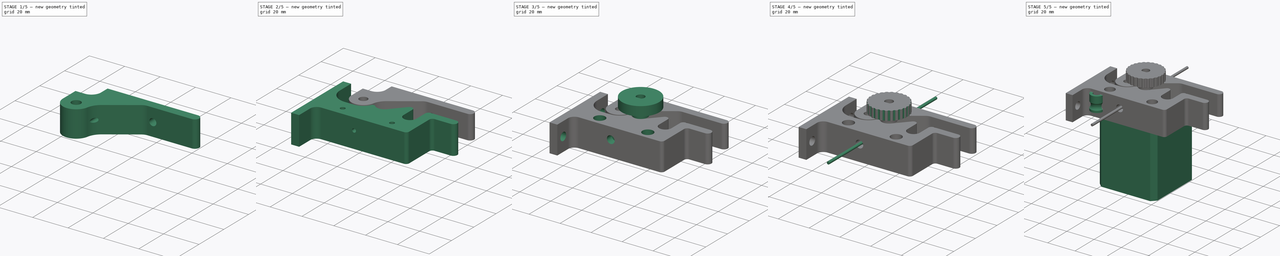
[diagram: build sequence overview — one tinted view per stage of 5, left to right]
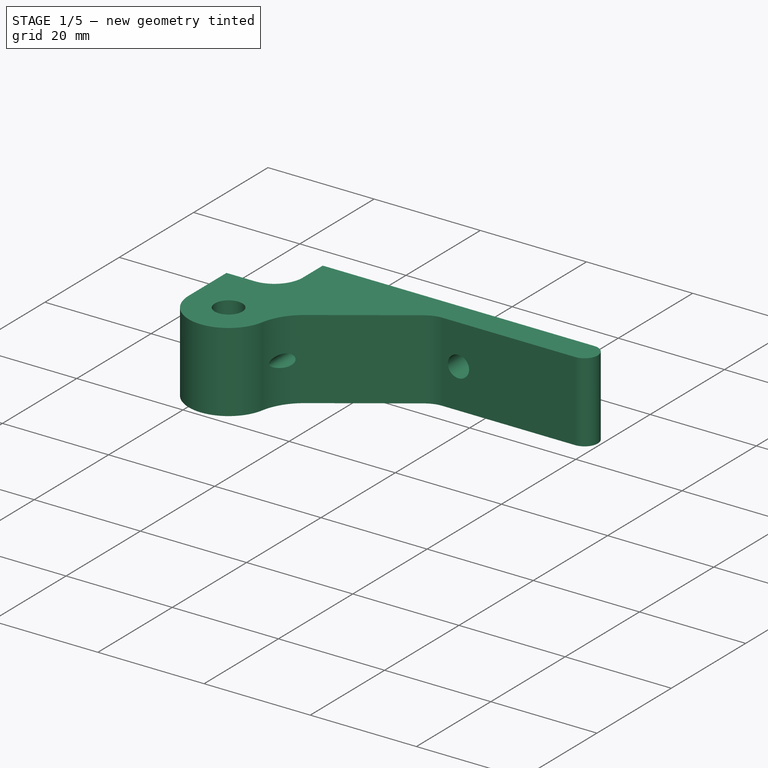
[diagram: stage 1 of 5 — iso view after this stage's code; geometry added in this stage tinted green]
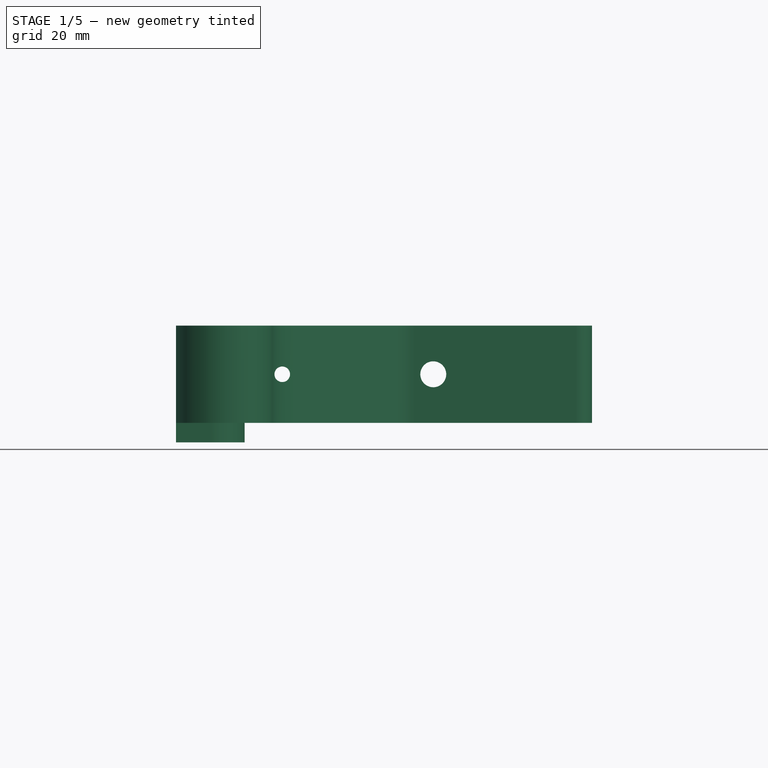
[diagram: stage 1 of 5 — front view after this stage's code; geometry added in this stage tinted green]
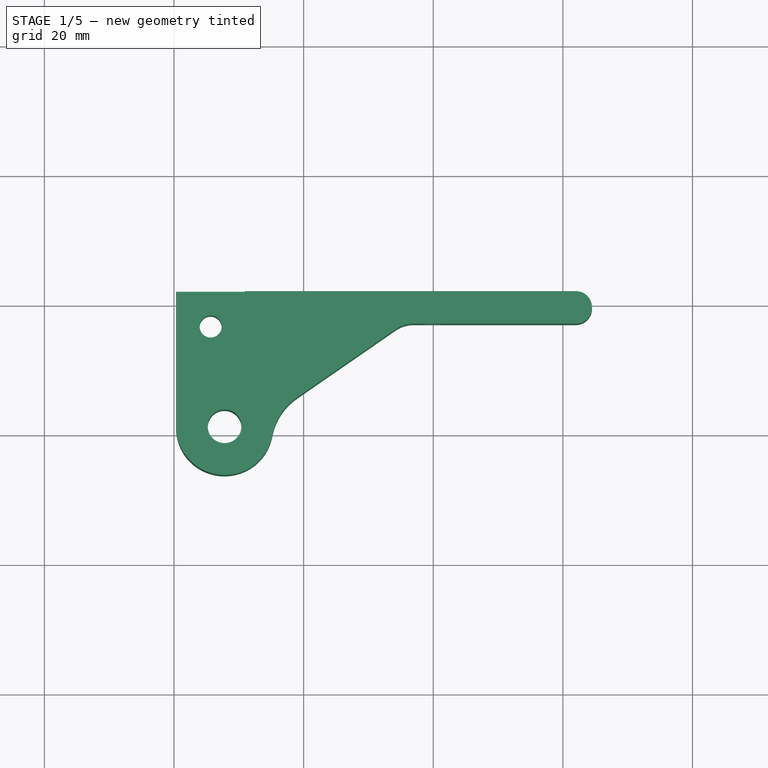
[diagram: stage 1 of 5 — top view after this stage's code; geometry added in this stage tinted green]
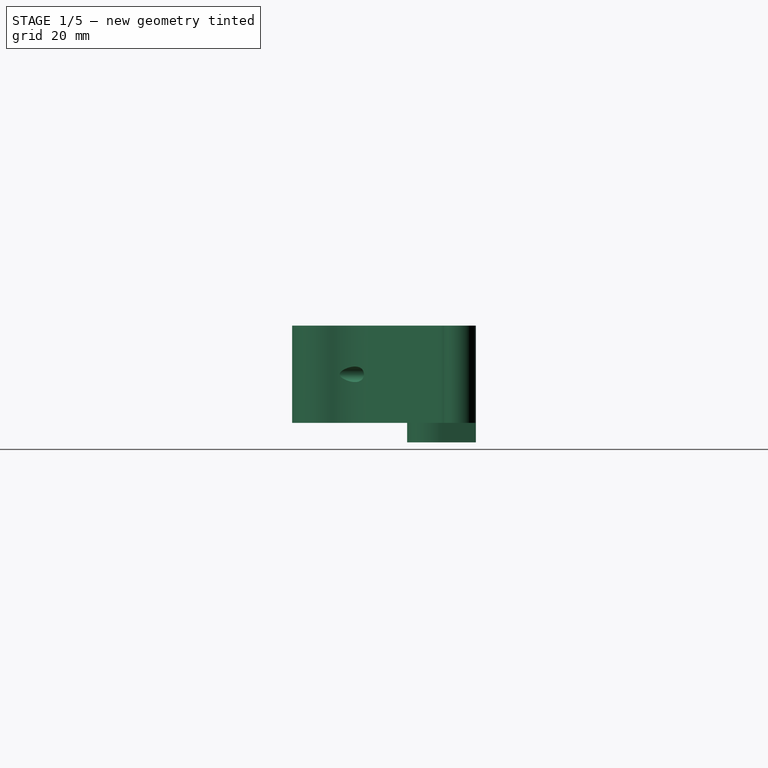
[diagram: stage 1 of 5 — right view after this stage's code; geometry added in this stage tinted green]
FCSTD DOCUMENT  (FreeCAD 0.16R4924 (Git))
Label: foxstruder
License: All rights reserved
LicenseURL: http://en.wikipedia.org/wiki/All_rights_reserved
objects: Sketcher::SketchObject×22, PartDesign::Pad×12, PartDesign::Pocket×9, App::DocumentObjectGroup×6, Part::Feature×5, PartDesign::Revolution×1, PartDesign::PolarPattern×1, PartDesign::Fillet×1, Part::Cut×1
note: 74 computed .brp shape members not serialized (recipe doc carries the construction recipe); baked Part::Feature solids carry a one-line shape summary decoded from their .brp

FEATURE [Part::Feature] Revolution001  label="MK8_copy"
  Placement = pos=(21.15,21.15,1.75) rot=(0.57735,0.57735,0.57735;2.0944rad)
  shape: bbox 9.841 x 9.841 x 11 mm, 6 faces (baked)
FEATURE [App::DocumentObjectGroup] Group001  label="gear"
  Group = -> [Revolution,Revolution001]
FEATURE [Sketcher::SketchObject] Sketch006  label="base001"
  Placement = pos=(0,0,48) rot=(0,0,1;0rad)
  sketch-geometry (45):
    g0: LineSegment [constr] StartX=5.65 StartY=5.65 StartZ=0 EndX=36.65 EndY=36.65 EndZ=0
    g1: LineSegment [constr] StartX=5.65 StartY=36.65 StartZ=0 EndX=36.65 EndY=5.65 EndZ=0
    g2: Circle [constr] CenterX=21.15 CenterY=21.15 CenterZ=0 NormalX=0 NormalY=0 NormalZ=1 Radius=11
    g3: Circle [constr] CenterX=21.15 CenterY=21.15 CenterZ=0 NormalX=0 NormalY=0 NormalZ=1 Radius=4.5
    g4: Circle CenterX=5.65 CenterY=36.65 CenterZ=0 NormalX=0 NormalY=0 NormalZ=1 Radius=1.7
    g5: Circle [constr] CenterX=36.65 CenterY=36.65 CenterZ=0 NormalX=0 NormalY=0 NormalZ=1 Radius=1.7
    g6: Circle [constr] CenterX=36.65 CenterY=5.65 CenterZ=0 NormalX=0 NormalY=0 NormalZ=1 Radius=1.7
    g7: Circle [constr] CenterX=5.65 CenterY=5.65 CenterZ=0 NormalX=0 NormalY=0 NormalZ=1 Radius=1.7
    g8: LineSegment [constr] StartX=5.65 StartY=36.65 StartZ=0 EndX=36.65 EndY=36.65 EndZ=0
    g9: LineSegment [constr] StartX=36.65 StartY=36.65 StartZ=0 EndX=36.65 EndY=5.65 EndZ=0
    g10: LineSegment [constr] StartX=36.65 StartY=5.65 StartZ=0 EndX=5.65 EndY=5.65 EndZ=0
    g11: Circle [constr] CenterX=7.8 CenterY=21.15 CenterZ=0 NormalX=0 NormalY=0 NormalZ=1 Radius=8
    g12: Circle CenterX=7.8 CenterY=21.15 CenterZ=0 NormalX=0 NormalY=0 NormalZ=1 Radius=2.6
    g13: LineSegment [constr] StartX=21.15 StartY=21.15 StartZ=0 EndX=15.8 EndY=21.15 EndZ=0
    g14: ArcOfCircle CenterX=7.8 CenterY=21.15 CenterZ=0 NormalX=0 NormalY=0 NormalZ=1 Radius=7.5 StartAngle=3.14159 EndAngle=6.09304
    g15: ArcOfCircle CenterX=24.332 CenterY=17.968 CenterZ=0 NormalX=0 NormalY=0 NormalZ=1 Radius=9.33542 StartAngle=2.17584 EndAngle=2.95144
    g16: LineSegment StartX=0.3 StartY=21.15 StartZ=0 EndX=0.3 EndY=42 EndZ=0
    g17: LineSegment StartX=34.156 StartY=36.1124 StartZ=0 EndX=19.022 EndY=25.6462 EndZ=0
    g18: ArcOfCircle [constr] CenterX=7.8 CenterY=21.15 CenterZ=0 NormalX=0 NormalY=0 NormalZ=1 Radius=8.5 StartAngle=4.71239 EndAngle=5.9112
    g19: LineSegment [constr] StartX=15.7187 StartY=18.0606 StartZ=0 EndX=17.2187 EndY=18.0606 EndZ=0
    g20: ArcOfCircle [constr] CenterX=21.15 CenterY=21.15 CenterZ=0 NormalX=0 NormalY=0 NormalZ=1 Radius=5 StartAngle=3.80765 EndAngle=5.55248
    g21: LineSegment [constr] StartX=24.8735 StartY=17.813 StartZ=0 EndX=32.5106 EndY=26.3348 EndZ=0
    g22: LineSegment [constr] StartX=36 StartY=25 StartZ=0 EndX=36 EndY=17 EndZ=0
    g23: ArcOfCircle [constr] CenterX=40 CenterY=17 CenterZ=0 NormalX=0 NormalY=0 NormalZ=1 Radius=4 StartAngle=3.14159 EndAngle=6.28319
    g24: LineSegment [constr] StartX=44 StartY=17 StartZ=0 EndX=44 EndY=25 EndZ=0
    g25: ArcOfCircle [constr] CenterX=34 CenterY=25 CenterZ=0 NormalX=0 NormalY=0 NormalZ=1 Radius=2 StartAngle=0 EndAngle=2.41089
    g26: ArcOfCircle [constr] CenterX=46 CenterY=25 CenterZ=0 NormalX=0 NormalY=0 NormalZ=1 Radius=2 StartAngle=1.5708 EndAngle=3.14159
    g27: LineSegment [constr] StartX=36 StartY=25 StartZ=0 EndX=44 EndY=25 EndZ=0
    g28: LineSegment [constr] StartX=40 StartY=13 StartZ=0 EndX=40 EndY=37 EndZ=0
    g29: LineSegment [constr] StartX=7.8 StartY=12.65 StartZ=0 EndX=2 EndY=12.65 EndZ=0
    g30: LineSegment [constr] StartX=0 StartY=10.65 StartZ=0 EndX=0 EndY=2 EndZ=0
    g31: LineSegment [constr] StartX=2 StartY=0 StartZ=0 EndX=48 EndY=0 EndZ=0
    g32: ArcOfCircle [constr] CenterX=2 CenterY=10.65 CenterZ=0 NormalX=0 NormalY=0 NormalZ=1 Radius=2 StartAngle=1.5708 EndAngle=3.14159
    g33: ArcOfCircle [constr] CenterX=2 CenterY=2 CenterZ=0 NormalX=0 NormalY=0 NormalZ=1 Radius=2 StartAngle=3.14159 EndAngle=4.71239
    g34: ArcOfCircle [constr] CenterX=48 CenterY=2 CenterZ=0 NormalX=0 NormalY=0 NormalZ=1 Radius=2 StartAngle=4.71239 EndAngle=6.28319
    g35: LineSegment StartX=37 StartY=37 StartZ=0 EndX=62 EndY=37 EndZ=0
    g36: ArcOfCircle CenterX=37 CenterY=32 CenterZ=0 NormalX=0 NormalY=0 NormalZ=1 Radius=5 StartAngle=1.5708 EndAngle=2.17584
    g37: LineSegment StartX=0.3 StartY=42 StartZ=0 EndX=62 EndY=42 EndZ=0
    g38: ArcOfCircle CenterX=62 CenterY=39.5 CenterZ=0 NormalX=0 NormalY=0 NormalZ=1 Radius=2.5 StartAngle=4.71239 EndAngle=7.85398
    g39: LineSegment [constr] StartX=46 StartY=27 StartZ=0 EndX=62 EndY=27 EndZ=0
    g40: LineSegment [constr] StartX=62 StartY=39.5 StartZ=0 EndX=62 EndY=24.5 EndZ=0
    g41: ArcOfCircle [constr] CenterX=62 CenterY=24.5 CenterZ=0 NormalX=0 NormalY=0 NormalZ=1 Radius=2.5 StartAngle=4.71239 EndAngle=7.85398
    g42: LineSegment [constr] StartX=62 StartY=22 StartZ=0 EndX=52 EndY=22 EndZ=0
    g43: LineSegment [constr] StartX=50 StartY=20 StartZ=0 EndX=50 EndY=2 EndZ=0
    g44: ArcOfCircle [constr] CenterX=52 CenterY=20 CenterZ=0 NormalX=0 NormalY=0 NormalZ=1 Radius=2 StartAngle=1.5708 EndAngle=3.14159
  constraints (125):
    c: Angle(g0) = 0.785398
    c: Perpendicular(g1,g0)
    c: PointOnObject(g2,g1)
    c: PointOnObject(g2,g0)
    c: Radius(g2) = 11
    c: Coincident(g3,g2)
    c: Radius(g3) = 4.5
    c: Radius(g4) = 1.7
    c: Equal(g7,g6)
    c: Equal(g6,g5)
    c: Equal(g5,g4)
    c: Coincident(g8,g4)
    c: Coincident(g8,g5)
    c: Horizontal(g8)
    c: Coincident(g9,g5)
    c: Coincident(g9,g6)
    c: Vertical(g9)
    c: Coincident(g10,g6)
    c: Coincident(g10,g7)
    c: Horizontal(g10)
    c: Distance(g8) = 31
    c: Radius(g11) = 8
    c: Coincident(g12,g11)
    c: Radius(g12) = 2.6
    c: Coincident(g13,g2)
    c: Horizontal(g13)
    c: Distance(g13) = 5.35
    c: Coincident(g14,g11)
    c: Perpendicular(g11,g13)
    c: Radius(g14) = 7.5
    c: PointOnObject(g13,g11)
    c: Tangent(g16,g14)
    c: Vertical(g16)
    c: Coincident(g16,g14)
    c: PointOnObject(g15,g1)
    c: PointOnObject(g15,g3)
    c: Coincident(g14,g15)
    c: Coincident(g15,g17)
    c: DistanceX(g2) = 21.15
    c: DistanceY(g2) = 21.15
    c: Coincident(g1,g6)
    c: Coincident(g0,g7)
    c: Coincident(g5,g0)
    c: Coincident(g1,g4)
    c: Tangent(g17,g15)
    c: Coincident(g18,g11)
    c: Radius(g18) = 8.5
    c: Coincident(g19,g18)
    c: Horizontal(g19)
    c: Coincident(g20,g2)
    c: Coincident(g20,g19)
    c: Radius(g20) = 5
    c: Distance(g19) = 1.5
    c: Coincident(g21,g20)
    c: Tangent(g21,g20)
    c: Vertical(g22)
    c: Coincident(g23,g22)
    c: Tangent(g23,g22)
    c: Coincident(g24,g23)
    c: Vertical(g24)
    c: Tangent(g23,g24)
    c: Radius(g23) = 4
    c: Tangent(g21,g25) = 1.5708
    c: Tangent(g22,g25) = 1.5708
    c: Coincident(g26,g24)
    c: Tangent(g26,g24)
    c: Equal(g25,g26)
    c: Radius(g26) = 2
    c: Coincident(g27,g22)
    c: Coincident(g27,g24)
    c: Horizontal(g27)
    c: PointOnObject(g28,g23)
    c: Vertical(g28)
    c: Perpendicular(g23,g28)
    c: Distance(g28) = 24
    c: Tangent(g18,g29) = 1.5708
    c: Vertical(g30)
    c: Horizontal(g31)
    c: Horizontal(g29)
    c: Tangent(g29,g32) = -1.5708
    c: Tangent(g30,g32) = -1.5708
    c: Tangent(g30,g33) = -1.5708
    c: Tangent(g31,g33) = -1.5708
    c: Tangent(g31,g34) = -1.5708
    c: Equal(g26,g34)
    c: Equal(g34,g33)
    c: Equal(g33,g32)
    c: PointOnObject(g30,g-2)
    c: PointOnObject(g31,g-1)
    c: Horizontal(g35)
    c: PointOnObject(g28,g35)
    c: DistanceY(g28,g24) = 12
    c: Tangent(g17,g36) = -1.5708
    c: Tangent(g35,g36) = 1.5708
    c: Radius(g36) = 5
    c: Horizontal(g37)
    c: Coincident(g38,g37)
    c: Coincident(g38,g35)
    c: Tangent(g38,g37)
    c: Tangent(g35,g38)
    c: Coincident(g39,g26)
    c: Horizontal(g39)
    c: Coincident(g40,g38)
    c: Vertical(g40)
    c: Coincident(g41,g40)
    c: Coincident(g41,g39)
    c: Tangent(g41,g39)
    c: Equal(g38,g41)
    c: Tangent(g41,g42) = 1.5708
    c: Coincident(g43,g34)
    c: Tangent(g42,g44) = -1.5708
    c: Tangent(g43,g44) = -1.5708
    c: Equal(g44,g26)
    c: Vertical(g43)
    c: Horizontal(g42)
    c: DistanceX(g43,g23) = -6
    c: Distance(g42) = 10
    c: Radius(g38) = 2.5
    c: Tangent(g39,g26)
    c: Tangent(g14,g15)
    c: DistanceX(g28) = 40
    c: Tangent(g34,g43)
    c: DistanceX(g35,g28) = 3
    c: Coincident(g37,g16)
    c: Distance(g16) = 20.85
FEATURE [PartDesign::Pad] Pad005
  Length = 15
  Length2 = 100
  Placement = pos=(0,0,48) rot=(0,0,1;0rad)
  Sketch = -> Sketch006
  Type = 0
FEATURE [App::DocumentObjectGroup] Group003  label="base_block"
  Group = -> [Sketch004,Pad008,Pocket,Pocket007,Pocket008,Pocket009,Pocket010]
FEATURE [Part::Feature] Pocket011001  label="extruder_base_copy"
  shape: bbox 77.5 x 46.65 x 18 mm, 40 faces (baked)
FEATURE [Part::Feature] Fillet001001  label="fingerwheel_copy"
  shape: bbox 26.4 x 26.4 x 13.7 mm, 59 faces (baked)
FEATURE [Sketcher::SketchObject] Sketch024
  ExternalGeometry = -> [Pad005]
  Placement = pos=(0,0,48) rot=(1,0,0;3.14159rad)
  Support = -> Pad005 [Face11]
  sketch-geometry (6):
    g0: LineSegment StartX=0.3 StartY=-42 StartZ=0 EndX=10.9 EndY=-42 EndZ=0
    g1: LineSegment StartX=10.9 StartY=-42 StartZ=0 EndX=10.9 EndY=-36.6592 EndZ=0
    g2: LineSegment StartX=0.3 StartY=-31.4 StartZ=0 EndX=0.3 EndY=-42 EndZ=0
    g3: ArcOfCircle CenterX=5.65 CenterY=-36.65 CenterZ=0 NormalX=0 NormalY=0 NormalZ=1 Radius=5.25 StartAngle=6.28144 EndAngle=7.85398
    g4: Circle CenterX=5.65 CenterY=-36.65 CenterZ=0 NormalX=0 NormalY=0 NormalZ=1 Radius=1.7
    g5: LineSegment StartX=5.65002 StartY=-31.4 StartZ=0 EndX=0.3 EndY=-31.4 EndZ=0
  constraints (15):
    c: Coincident(g0,g1)
    c: Coincident(g2,g0)
    c: Horizontal(g0)
    c: Vertical(g1)
    c: Vertical(g2)
    c: Coincident(g0,g-4)
    c: Coincident(g3,g-3)
    c: Coincident(g3,g1)
    c: Coincident(g4,g3)
    c: Equal(g4,g-3)
    c: Coincident(g5,g3)
    c: Horizontal(g5)
    c: Coincident(g2,g5)
    c: Tangent(g3,g5)
    c: Radius(g3) = 5.25
FEATURE [PartDesign::Pad] Pad013
  Length = 3
  Length2 = 100
  Placement = pos=(0,0,48) rot=(0,0,1;0rad)
  Sketch = -> Sketch024
  Type = 0
FEATURE [Sketcher::SketchObject] Sketch014
  Placement = pos=(0,42,48) rot=(0,0.707107,0.707107;3.14159rad)
  Support = -> Pad013 [Face15]
  sketch-geometry (3):
    g0: Circle CenterX=-40 CenterY=7.5 CenterZ=0 NormalX=0 NormalY=0 NormalZ=1 Radius=2
    g1: Circle CenterX=-16.7 CenterY=7.5 CenterZ=0 NormalX=0 NormalY=0 NormalZ=1 Radius=1.2
    g2: LineSegment [constr] StartX=-40 StartY=7.5 StartZ=0 EndX=-16.7 EndY=7.5 EndZ=0
  constraints (8):
    c: Radius(g0) = 2
    c: DistanceX(g0) = -40
    c: DistanceY(g0) = 7.5
    c: Radius(g1) = 1.2
    c: Coincident(g2,g0)
    c: Coincident(g2,g1)
    c: Horizontal(g2)
    c: DistanceX(g1) = -16.7
FEATURE [PartDesign::Pocket] Pocket011002
  Length = 5
  Placement = pos=(0,0,48) rot=(0,0,1;0rad)
  Sketch = -> Sketch014
  Type = 1
FEATURE [Sketcher::SketchObject] Sketch017
  Placement = pos=(0,42,48) rot=(0,0.707107,0.707107;3.14159rad)
  Support = -> Pocket011002 [Face6]
  sketch-geometry (3):
    g0: Circle [constr] CenterX=-40 CenterY=7.5 CenterZ=0 NormalX=0 NormalY=0 NormalZ=1 Radius=2
    g1: Circle CenterX=-16.7 CenterY=7.5 CenterZ=0 NormalX=0 NormalY=0 NormalZ=1 Radius=2.6
    g2: LineSegment [constr] StartX=-40 StartY=7.5 StartZ=0 EndX=-16.7 EndY=7.5 EndZ=0
  constraints (8):
    c: Radius(g0) = 2
    c: DistanceX(g0) = -40
    c: DistanceY(g0) = 7.5
    c: Radius(g1) = 2.6
    c: Coincident(g2,g0)
    c: Coincident(g2,g1)
    c: Horizontal(g2)
    c: DistanceX(g1) = -16.7
FEATURE [PartDesign::Pocket] Pocket011003
  Length = 4.5
  Placement = pos=(0,0,48) rot=(0,0,1;0rad)
  Sketch = -> Sketch017
  Type = 0
FEATURE [Sketcher::SketchObject] Sketch025
  Placement = pos=(0,0,63) rot=(0,0,1;0rad)
  Support = -> Pocket011003 [Face5]
  sketch-geometry (5):
    g0: LineSegment StartX=-0.494617 StartY=43 StartZ=0 EndX=10.9329 EndY=43 EndZ=0
    g1: LineSegment StartX=-0.494617 StartY=31.3034 StartZ=0 EndX=-0.494617 EndY=43 EndZ=0
    g2: ArcOfCircle CenterX=5.58291 CenterY=36.6534 CenterZ=0 NormalX=0 NormalY=0 NormalZ=1 Radius=5.35 StartAngle=4.71239 EndAngle=6.28319
    g3: LineSegment StartX=-0.494617 StartY=31.3034 StartZ=0 EndX=5.58291 EndY=31.3034 EndZ=0
    g4: LineSegment StartX=10.9329 StartY=36.6534 StartZ=0 EndX=10.9329 EndY=43 EndZ=0
  constraints (12):
    c: Coincident(g1,g0)
    c: Horizontal(g0)
    c: Vertical(g1)
    c: Coincident(g3,g1)
    c: Coincident(g3,g2)
    c: Horizontal(g3)
    c: Coincident(g4,g2)
    c: Vertical(g4)
    c: Coincident(g0,g4)
    c: Tangent(g4,g2)
    c: Tangent(g3,g2)
    c: Radius(g2) = 5.35
FEATURE [PartDesign::Pocket] Pocket011004
  Length = 6
  Placement = pos=(0,0,48) rot=(0,0,1;0rad)
  Sketch = -> Sketch025
  Type = 0
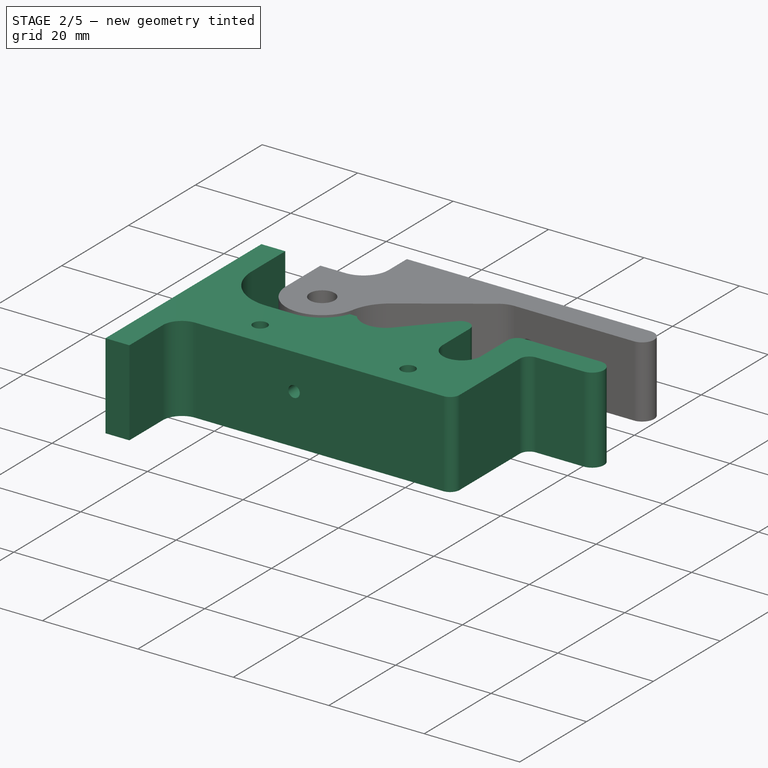
[diagram: stage 2 of 5 — iso view after this stage's code; geometry added in this stage tinted green]
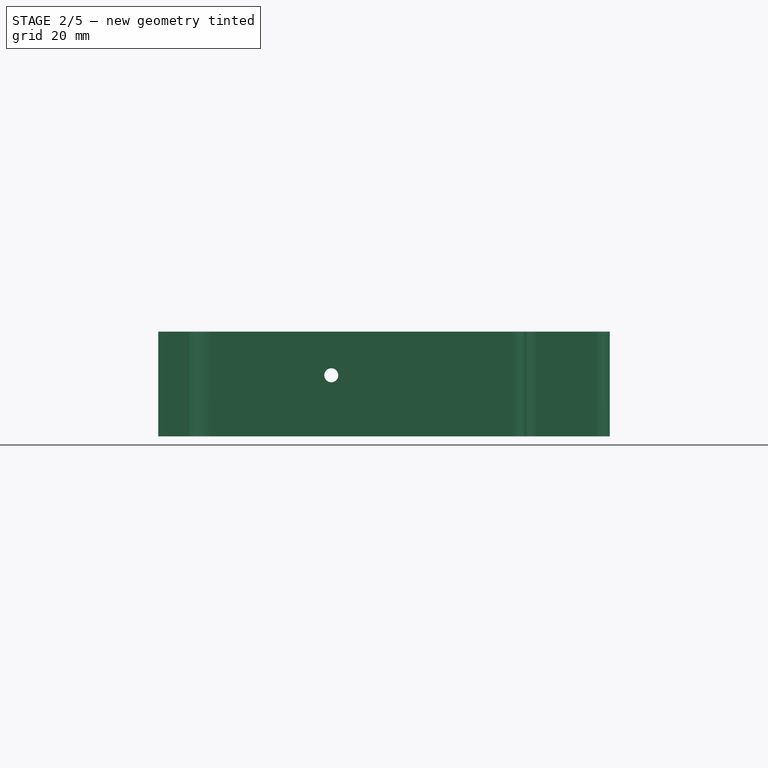
[diagram: stage 2 of 5 — front view after this stage's code; geometry added in this stage tinted green]
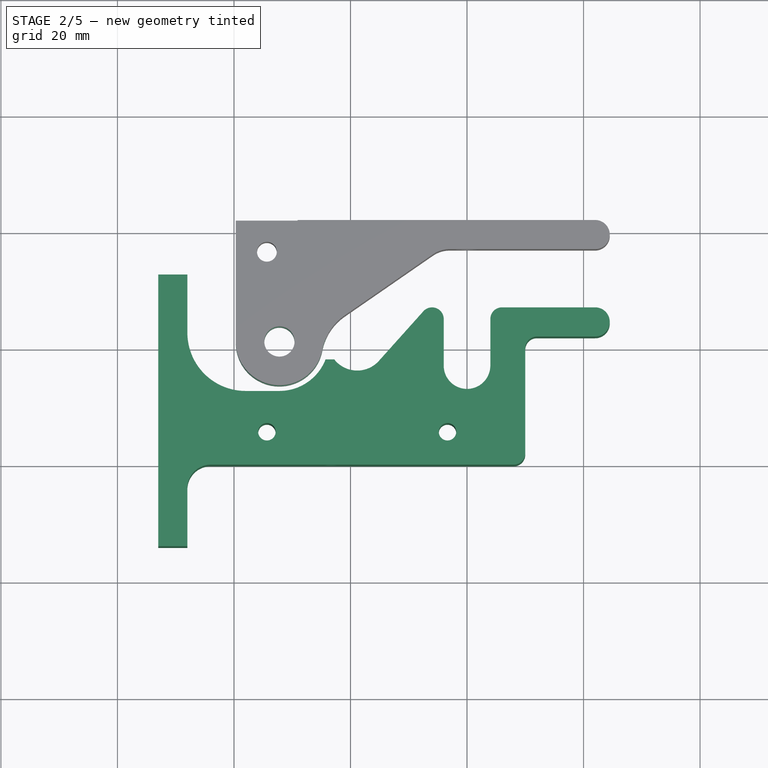
[diagram: stage 2 of 5 — top view after this stage's code; geometry added in this stage tinted green]
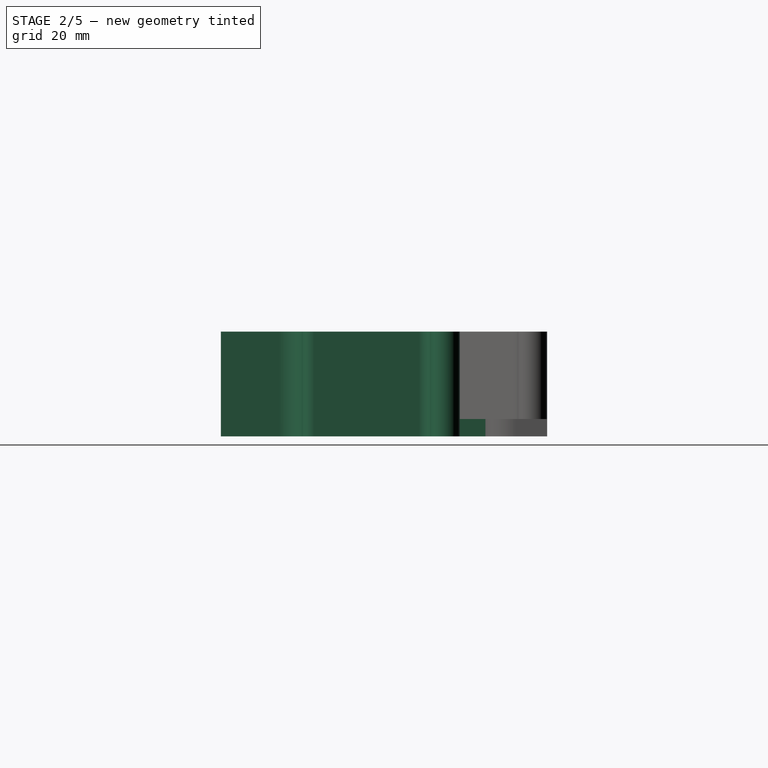
[diagram: stage 2 of 5 — right view after this stage's code; geometry added in this stage tinted green]
FEATURE [Sketcher::SketchObject] Sketch011  label="base004"
  Placement = pos=(0,0,45) rot=(0,0,1;0rad)
  sketch-geometry (51):
    g0: LineSegment [constr] StartX=5.65 StartY=5.65 StartZ=0 EndX=36.65 EndY=36.65 EndZ=0
    g1: LineSegment [constr] StartX=5.65 StartY=36.65 StartZ=0 EndX=36.65 EndY=5.65 EndZ=0
    g2: Circle [constr] CenterX=21.15 CenterY=21.15 CenterZ=0 NormalX=0 NormalY=0 NormalZ=1 Radius=11
    g3: Circle [constr] CenterX=21.15 CenterY=21.15 CenterZ=0 NormalX=0 NormalY=0 NormalZ=1 Radius=4.5
    g4: Circle [constr] CenterX=5.65 CenterY=36.65 CenterZ=0 NormalX=0 NormalY=0 NormalZ=1 Radius=1.5
    g5: Circle [constr] CenterX=36.65 CenterY=36.65 CenterZ=0 NormalX=0 NormalY=0 NormalZ=1 Radius=1.5
    g6: Circle CenterX=36.65 CenterY=5.65 CenterZ=0 NormalX=0 NormalY=0 NormalZ=1 Radius=1.5
    g7: Circle CenterX=5.65 CenterY=5.65 CenterZ=0 NormalX=0 NormalY=0 NormalZ=1 Radius=1.5
    g8: LineSegment [constr] StartX=5.65 StartY=36.65 StartZ=0 EndX=36.65 EndY=36.65 EndZ=0
    g9: LineSegment [constr] StartX=36.65 StartY=36.65 StartZ=0 EndX=36.65 EndY=5.65 EndZ=0
    g10: LineSegment [constr] StartX=36.65 StartY=5.65 StartZ=0 EndX=5.65 EndY=5.65 EndZ=0
    g11: Circle [constr] CenterX=7.8 CenterY=21.15 CenterZ=0 NormalX=0 NormalY=0 NormalZ=1 Radius=8
    g12: Circle [constr] CenterX=7.8 CenterY=21.15 CenterZ=0 NormalX=0 NormalY=0 NormalZ=1 Radius=2.5
    g13: LineSegment [constr] StartX=21.15 StartY=21.15 StartZ=0 EndX=15.8 EndY=21.15 EndZ=0
    g14: ArcOfCircle [constr] CenterX=7.8 CenterY=21.15 CenterZ=0 NormalX=0 NormalY=0 NormalZ=1 Radius=7.5 StartAngle=3.14159 EndAngle=6.09304
    g15: ArcOfCircle [constr] CenterX=24.332 CenterY=17.968 CenterZ=0 NormalX=0 NormalY=0 NormalZ=1 Radius=9.33542 StartAngle=2.17584 EndAngle=2.95144
    g16: LineSegment [constr] StartX=0.3 StartY=21.15 StartZ=0 EndX=0.3 EndY=36.65 EndZ=0
    g17: LineSegment [constr] StartX=34.156 StartY=36.1124 StartZ=0 EndX=19.022 EndY=25.6462 EndZ=0
    g18: ArcOfCircle [constr] CenterX=5.65 CenterY=36.65 CenterZ=0 NormalX=0 NormalY=0 NormalZ=1 Radius=5.35 StartAngle=1.5708 EndAngle=3.14159
    g19: ArcOfCircle CenterX=7.8 CenterY=21.15 CenterZ=0 NormalX=0 NormalY=0 NormalZ=1 Radius=8.5 StartAngle=4.71239 EndAngle=5.9112
    g20: LineSegment StartX=15.7187 StartY=18.0606 StartZ=0 EndX=17.2187 EndY=18.0606 EndZ=0
    g21: ArcOfCircle CenterX=21.15 CenterY=21.15 CenterZ=0 NormalX=0 NormalY=0 NormalZ=1 Radius=5 StartAngle=3.80765 EndAngle=5.55248
    g22: LineSegment StartX=24.8735 StartY=17.813 StartZ=0 EndX=32.5106 EndY=26.3348 EndZ=0
    g23: LineSegment StartX=36 StartY=25 StartZ=0 EndX=36 EndY=17 EndZ=0
    g24: ArcOfCircle CenterX=40 CenterY=17 CenterZ=0 NormalX=0 NormalY=0 NormalZ=1 Radius=4 StartAngle=3.14159 EndAngle=6.28319
    g25: LineSegment StartX=44 StartY=17 StartZ=0 EndX=44 EndY=25 EndZ=0
    g26: ArcOfCircle CenterX=34 CenterY=25 CenterZ=0 NormalX=0 NormalY=0 NormalZ=1 Radius=2 StartAngle=0 EndAngle=2.41089
    g27: ArcOfCircle CenterX=46 CenterY=25 CenterZ=0 NormalX=0 NormalY=0 NormalZ=1 Radius=2 StartAngle=1.5708 EndAngle=3.14159
    g28: LineSegment [constr] StartX=36 StartY=25 StartZ=0 EndX=44 EndY=25 EndZ=0
    g29: LineSegment [constr] StartX=40 StartY=13 StartZ=0 EndX=40 EndY=37 EndZ=0
    g30: LineSegment StartX=7.8 StartY=12.65 StartZ=0 EndX=2 EndY=12.65 EndZ=0
    g31: LineSegment StartX=-4 StartY=0 StartZ=0 EndX=48 EndY=0 EndZ=0
    g32: ArcOfCircle CenterX=48 CenterY=2 CenterZ=0 NormalX=0 NormalY=0 NormalZ=1 Radius=2 StartAngle=4.71239 EndAngle=6.28319
    g33: LineSegment [constr] StartX=37 StartY=37 StartZ=0 EndX=62 EndY=37 EndZ=0
    g34: ArcOfCircle [constr] CenterX=37 CenterY=32 CenterZ=0 NormalX=0 NormalY=0 NormalZ=1 Radius=5 StartAngle=1.5708 EndAngle=2.17584
    g35: LineSegment [constr] StartX=5.65 StartY=42 StartZ=0 EndX=62 EndY=42 EndZ=0
    g36: ArcOfCircle [constr] CenterX=62 CenterY=39.5 CenterZ=0 NormalX=0 NormalY=0 NormalZ=1 Radius=2.5 StartAngle=4.71239 EndAngle=7.85398
    g37: LineSegment StartX=46 StartY=27 StartZ=0 EndX=62 EndY=27 EndZ=0
    g38: LineSegment [constr] StartX=62 StartY=39.5 StartZ=0 EndX=62 EndY=24.5 EndZ=0
    g39: ArcOfCircle CenterX=62 CenterY=24.5 CenterZ=0 NormalX=0 NormalY=0 NormalZ=1 Radius=2.5 StartAngle=4.71239 EndAngle=7.85398
    g40: LineSegment StartX=62 StartY=22 StartZ=0 EndX=52 EndY=22 EndZ=0
    g41: LineSegment StartX=50 StartY=20 StartZ=0 EndX=50 EndY=2 EndZ=0
    g42: ArcOfCircle CenterX=52 CenterY=20 CenterZ=0 NormalX=0 NormalY=0 NormalZ=1 Radius=2 StartAngle=1.5708 EndAngle=3.14159
    g43: ArcOfCircle CenterX=2 CenterY=22.65 CenterZ=0 NormalX=0 NormalY=0 NormalZ=1 Radius=10 StartAngle=3.14159 EndAngle=4.71239
    g44: LineSegment StartX=-8 StartY=22.65 StartZ=0 EndX=-8 EndY=32.65 EndZ=0
    g45: ArcOfCircle CenterX=-4 CenterY=-4 CenterZ=0 NormalX=0 NormalY=0 NormalZ=1 Radius=4 StartAngle=1.5708 EndAngle=3.14159
    g46: LineSegment StartX=-8 StartY=-3.99997 StartZ=0 EndX=-8 EndY=-14 EndZ=0
    g47: LineSegment [constr] StartX=-8 StartY=22.65 StartZ=0 EndX=-8 EndY=-3.99997 EndZ=0
    g48: LineSegment StartX=-8 StartY=32.65 StartZ=0 EndX=-13 EndY=32.65 EndZ=0
    g49: LineSegment StartX=-13 StartY=32.65 StartZ=0 EndX=-13 EndY=-14 EndZ=0
    g50: LineSegment StartX=-13 StartY=-14 StartZ=0 EndX=-8 EndY=-14 EndZ=0
  constraints (145):
    c: Angle(g0) = 0.785398
    c: Perpendicular(g1,g0)
    c: PointOnObject(g2,g1)
    c: PointOnObject(g2,g0)
    c: Radius(g2) = 11
    c: Coincident(g3,g2)
    c: Radius(g3) = 4.5
    c: Radius(g4) = 1.5
    c: Equal(g7,g6)
    c: Equal(g6,g5)
    c: Equal(g5,g4)
    c: Coincident(g8,g4)
    c: Coincident(g8,g5)
    c: Horizontal(g8)
    c: Coincident(g9,g5)
    c: Coincident(g9,g6)
    c: Vertical(g9)
    c: Coincident(g10,g6)
    c: Coincident(g10,g7)
    c: Horizontal(g10)
    c: Distance(g8) = 31
    c: Radius(g11) = 8
    c: Coincident(g12,g11)
    c: Radius(g12) = 2.5
    c: Coincident(g13,g2)
    c: Horizontal(g13)
    c: Distance(g13) = 5.35
    c: Coincident(g14,g11)
    c: Perpendicular(g11,g13)
    c: Radius(g14) = 7.5
    c: PointOnObject(g13,g11)
    c: Tangent(g16,g18) = 1.5708
    c: Coincident(g18,g4)
    c: Tangent(g16,g14)
    c: Vertical(g16)
    c: Coincident(g16,g14)
    c: PointOnObject(g15,g1)
    c: PointOnObject(g15,g3)
    c: Coincident(g14,g15)
    c: Coincident(g15,g17)
    c: DistanceX(g2) = 21.15
    c: DistanceY(g2) = 21.15
    c: Coincident(g1,g6)
    c: Coincident(g0,g7)
    c: Coincident(g5,g0)
    c: Coincident(g1,g4)
    c: Tangent(g17,g15)
    c: Coincident(g19,g11)
    c: Radius(g19) = 8.5
    c: Coincident(g20,g19)
    c: Horizontal(g20)
    c: Coincident(g21,g2)
    c: Coincident(g21,g20)
    c: Radius(g21) = 5
    c: Distance(g20) = 1.5
    c: Coincident(g22,g21)
    c: Tangent(g22,g21)
    c: Vertical(g23)
    c: Coincident(g24,g23)
    c: Tangent(g24,g23)
    c: Coincident(g25,g24)
    c: Vertical(g25)
    c: Tangent(g24,g25)
    c: Radius(g24) = 4
    c: Tangent(g22,g26) = 1.5708
    c: Tangent(g23,g26) = 1.5708
    c: Coincident(g27,g25)
    c: Tangent(g27,g25)
    c: Equal(g26,g27)
    c: Radius(g27) = 2
    c: Coincident(g28,g23)
    c: Coincident(g28,g25)
    c: Horizontal(g28)
    c: PointOnObject(g29,g24)
    c: Vertical(g29)
    c: Perpendicular(g24,g29)
    c: Distance(g29) = 24
    c: Tangent(g19,g30) = 1.5708
    c: Horizontal(g31)
    c: Horizontal(g30)
    c: Tangent(g31,g32) = -1.5708
    c: Equal(g27,g32)
    c: PointOnObject(g31,g-1)
    c: Horizontal(g33)
    c: PointOnObject(g29,g33)
    c: DistanceY(g29,g25) = 12
    c: Tangent(g17,g34) = -1.5708
    c: Tangent(g33,g34) = 1.5708
    c: Radius(g34) = 5
    c: Coincident(g35,g18)
    c: Horizontal(g35)
    c: Coincident(g36,g35)
    c: Coincident(g36,g33)
    c: Tangent(g36,g35)
    c: Tangent(g33,g36)
    c: Coincident(g37,g27)
    c: Horizontal(g37)
    c: Coincident(g38,g36)
    c: Vertical(g38)
    c: Coincident(g39,g38)
    c: Coincident(g39,g37)
    c: Tangent(g39,g37)
    c: Equal(g36,g39)
    c: Tangent(g39,g40) = 1.5708
    c: Coincident(g41,g32)
    c: Tangent(g40,g42) = -1.5708
    c: Tangent(g41,g42) = -1.5708
    c: Equal(g42,g27)
    c: Vertical(g41)
    c: Horizontal(g40)
    c: DistanceX(g41,g24) = -6
    c: Distance(g40) = 10
    c: Radius(g36) = 2.5
    c: Tangent(g37,g27)
    c: Tangent(g14,g15)
    c: DistanceX(g29) = 40
    c: Tangent(g32,g41)
    c: DistanceX(g33,g29) = 3
    c: Tangent(g18,g35)
    c: Coincident(g43,g30)
    c: Tangent(g43,g30)
    c: Coincident(g44,g43)
    c: Vertical(g44)
    c: Coincident(g45,g31)
    c: Tangent(g31,g45)
    c: Coincident(g46,g45)
    c: Vertical(g46)
    c: Coincident(g47,g43)
    c: Coincident(g47,g45)
    c: Vertical(g47)
    c: DistanceX(g45) = -8
    c: Coincident(g44,g48)
    c: Horizontal(g48)
    c: Coincident(g48,g49)
    c: Vertical(g49)
    c: Coincident(g49,g50)
    c: Coincident(g50,g46)
    c: Horizontal(g50)
    c: Distance(g48) = 5
    c: Tangent(g43,g44)
    c: Tangent(g45,g46)
    c: Distance(g46) = 10
    c: Radius(g45) = 4
    c: Radius(g43) = 10
    c: Distance(g44) = 10
FEATURE [PartDesign::Pad] Pad008
  Length = 18
  Length2 = 100
  Placement = pos=(0,0,45) rot=(0,0,1;0rad)
  Sketch = -> Sketch011
  Type = 0
FEATURE [App::DocumentObjectGroup] Group005  label="fingerwheel"
  Group = -> [Pad010,Pad011,Pocket006,PolarPattern,Fillet]
FEATURE [PartDesign::Pad] Pad012  label="roller_copy"
  Length = 5.5
  Length2 = 100
  Placement = pos=(7.8,21.15,52.75) rot=(0,0,1;0rad)
  Sketch = -> Sketch009
  Type = 0
FEATURE [PartDesign::Pocket] Pocket
  Length = 3
  Placement = pos=(0,0,45) rot=(0,0,1;0rad)
  Sketch = -> Sketch012
  Type = 0
FEATURE [Sketcher::SketchObject] Sketch015
  Placement = pos=(0,0,45) rot=(1,0,0;1.5708rad)
  Support = -> Pocket [Face14]
  sketch-geometry (1):
    g0: Circle CenterX=16.7 CenterY=10.5 CenterZ=0 NormalX=0 NormalY=0 NormalZ=1 Radius=1.2
  constraints (3):
    c: DistanceX(g0) = 16.7
    c: DistanceY(g0) = 10.5
    c: Radius(g0) = 1.2
FEATURE [PartDesign::Pocket] Pocket007
  Length = 5
  Placement = pos=(0,0,45) rot=(0,0,1;0rad)
  Sketch = -> Sketch015
  Type = 1
FEATURE [Part::Cut] Cut  label="tensioner001"
  Base = -> Pocket011004
  Tool = -> Pad012
FEATURE [App::DocumentObjectGroup] Group004  label="tensioner"
  Group = -> [Pad005,Pad013,Pocket011002,Pocket011003,Cut]
FEATURE [Part::Feature] Cut001  label="tensioner_copy"
  Placement = pos=(45,10,42) rot=(-1,0,0;1.5708rad)
  shape: bbox 64.2 x 18 x 28.35 mm, 29 faces (baked)
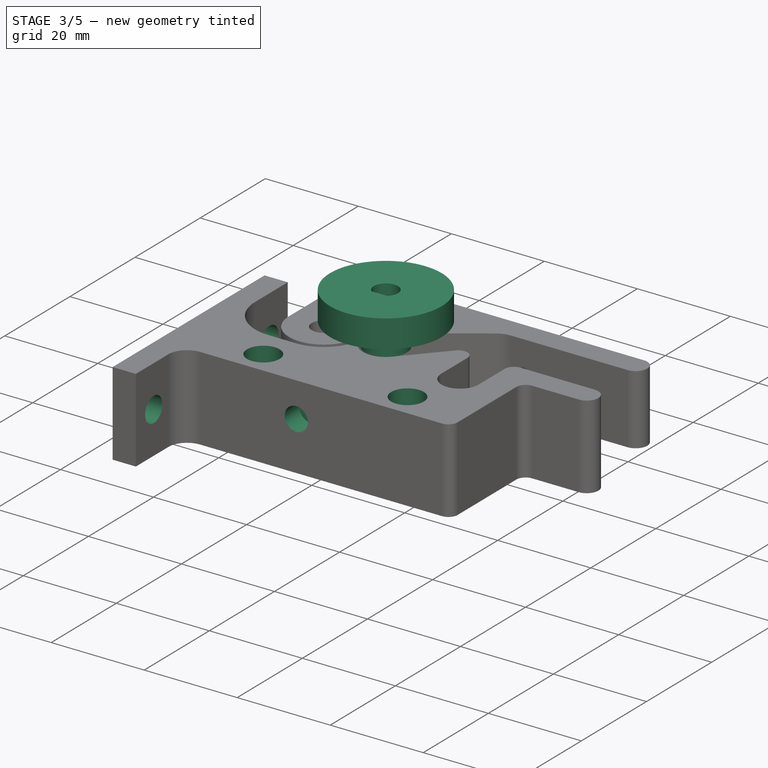
[diagram: stage 3 of 5 — iso view after this stage's code; geometry added in this stage tinted green]
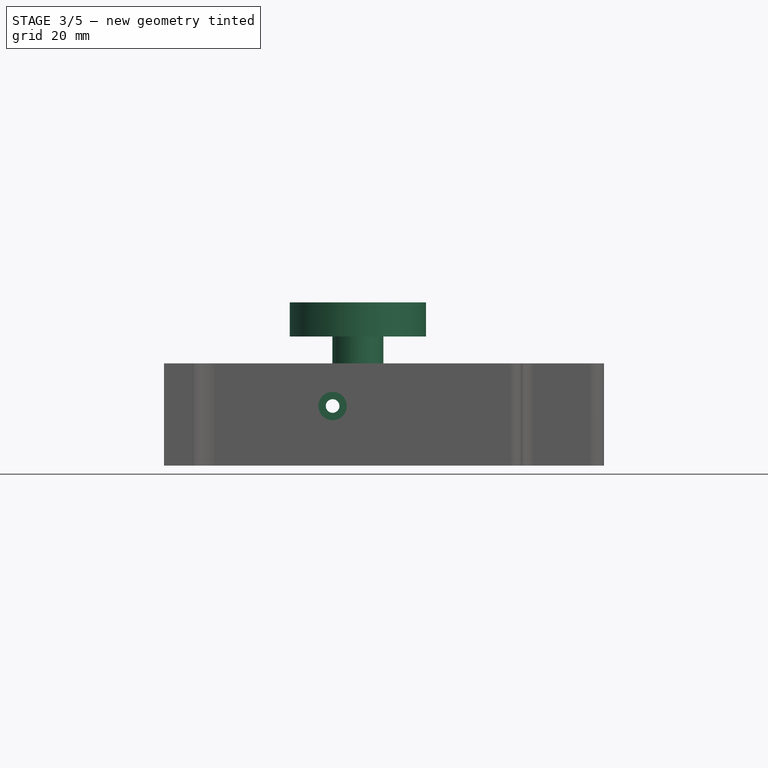
[diagram: stage 3 of 5 — front view after this stage's code; geometry added in this stage tinted green]
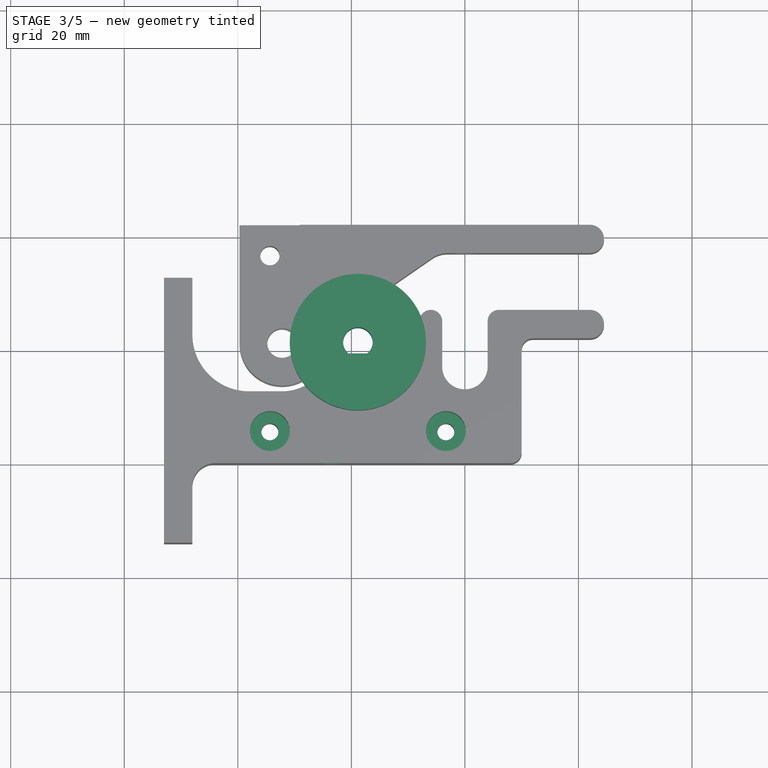
[diagram: stage 3 of 5 — top view after this stage's code; geometry added in this stage tinted green]
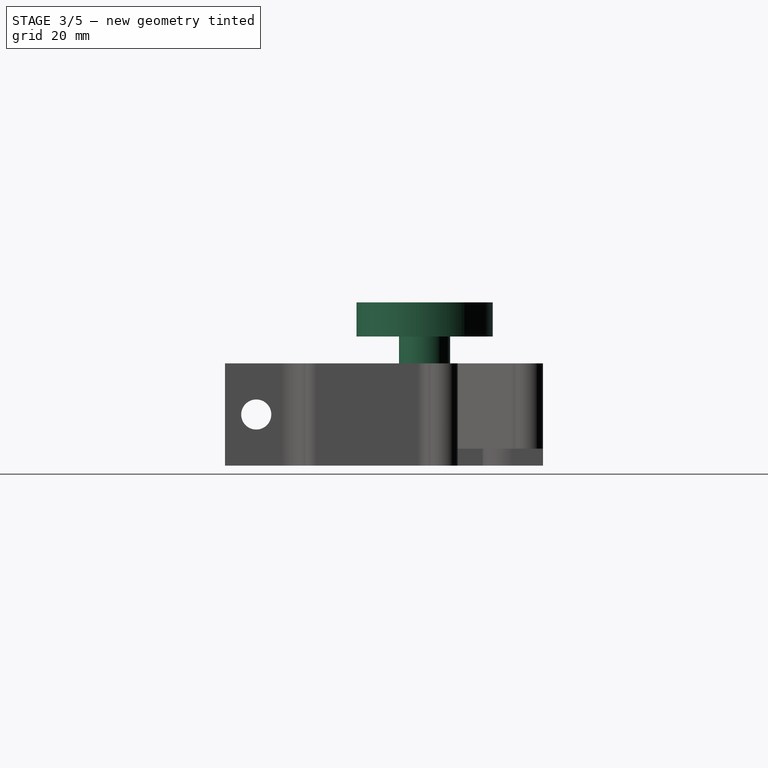
[diagram: stage 3 of 5 — right view after this stage's code; geometry added in this stage tinted green]
FEATURE [Sketcher::SketchObject] Sketch012
  ExternalGeometry = -> [Pad008]
  Placement = pos=(0,0,45) rot=(1,0,0;3.14159rad)
  Support = -> Pad008 [Face27]
  sketch-geometry (1):
    g0: Circle CenterX=21.15 CenterY=-21.15 CenterZ=0 NormalX=0 NormalY=0 NormalZ=1 Radius=12
  constraints (2):
    c: Coincident(g0,g-3)
    c: Radius(g0) = 12
FEATURE [Part::Feature] Pad004  label="NEMA_17_copy"
  shape: bbox 42.3 x 42.3 x 71 mm, 22 faces (baked)
FEATURE [App::DocumentObjectGroup] Group  label="motor"
  Group = -> [Pad,Pad001,Pad002,Pad003,Pad004]
FEATURE [App::DocumentObjectGroup] Group002  label="visaides"
  Group = -> [Pad006,Pad007,Group,Group001]
FEATURE [Sketcher::SketchObject] Sketch019
  ExternalGeometry = -> [Revolution001]
  Placement = pos=(21.15,21.15,62.75) rot=(0,0,-1;1.5708rad)
  sketch-geometry (4):
    g0: ArcOfCircle CenterX=0 CenterY=0 CenterZ=0 NormalX=0 NormalY=0 NormalZ=1 Radius=2.6 StartAngle=0.69316 EndAngle=5.59003
    g1: LineSegment StartX=2 StartY=1.66132 StartZ=0 EndX=2 EndY=-1.66132 EndZ=0
    g2: LineSegment [constr] StartX=-2.6 StartY=0 StartZ=0 EndX=2 EndY=0 EndZ=0
    g3: Circle CenterX=0 CenterY=0 CenterZ=0 NormalX=0 NormalY=0 NormalZ=1 Radius=4.5
  constraints (11):
    c: Coincident(g0,g-1)
    c: Coincident(g1,g0)
    c: Coincident(g1,g0)
    c: Vertical(g1)
    c: PointOnObject(g2,g0)
    c: PointOnObject(g2,g1)
    c: Horizontal(g2)
    c: Distance(g2) = 4.6
    c: Perpendicular(g0,g2)
    c: Radius(g0) = 2.6
    c: Equal(g3,g-3)
FEATURE [PartDesign::Pad] Pad010
  Length = 5
  Length2 = 100
  Placement = pos=(21.15,21.15,62.75) rot=(0,0,-1;1.5708rad)
  Sketch = -> Sketch019
  Type = 0
FEATURE [Sketcher::SketchObject] Sketch020
  Placement = pos=(21.15,21.15,67.75) rot=(0,0,-1;1.5708rad)
  Support = -> Pad010 [Face5]
  sketch-geometry (4):
    g0: ArcOfCircle CenterX=0 CenterY=0 CenterZ=0 NormalX=0 NormalY=0 NormalZ=1 Radius=2.6 StartAngle=0.69316 EndAngle=5.59003
    g1: LineSegment StartX=2 StartY=1.66132 StartZ=0 EndX=2 EndY=-1.66132 EndZ=0
    g2: LineSegment [constr] StartX=-2.6 StartY=0 StartZ=0 EndX=2 EndY=0 EndZ=0
    g3: Circle CenterX=0 CenterY=0 CenterZ=0 NormalX=0 NormalY=0 NormalZ=1 Radius=12
  constraints (11):
    c: Coincident(g0,g-1)
    c: Coincident(g1,g0)
    c: Coincident(g1,g0)
    c: Vertical(g1)
    c: PointOnObject(g2,g0)
    c: PointOnObject(g2,g1)
    c: Horizontal(g2)
    c: Distance(g2) = 4.6
    c: Perpendicular(g0,g2)
    c: Radius(g0) = 2.6
    c: Radius(g3) = 12
FEATURE [PartDesign::Pad] Pad011
  Length = 6
  Length2 = 100
  Placement = pos=(21.15,21.15,62.75) rot=(0,0,-1;1.5708rad)
  Sketch = -> Sketch020
  Type = 0
FEATURE [Sketcher::SketchObject] Sketch016
  Placement = pos=(0,0,45) rot=(1,0,0;1.5708rad)
  Support = -> Pocket007 [Face17]
  sketch-geometry (1):
    g0: Circle CenterX=16.7 CenterY=10.5 CenterZ=0 NormalX=0 NormalY=0 NormalZ=1 Radius=2.5
  constraints (3):
    c: DistanceX(g0) = 16.7
    c: DistanceY(g0) = 10.5
    c: Radius(g0) = 2.5
FEATURE [PartDesign::Pocket] Pocket008
  Length = 4.5
  Placement = pos=(0,0,45) rot=(0,0,1;0rad)
  Sketch = -> Sketch016
  Type = 0
FEATURE [Sketcher::SketchObject] Sketch022
  Placement = pos=(0,0,63) rot=(0,0,1;0rad)
  Support = -> Pocket008 [Face8]
  sketch-geometry (2):
    g0: Circle CenterX=5.65 CenterY=5.65 CenterZ=0 NormalX=0 NormalY=0 NormalZ=1 Radius=3.5
    g1: Circle CenterX=36.65 CenterY=5.65 CenterZ=0 NormalX=0 NormalY=0 NormalZ=1 Radius=3.5
  constraints (2):
    c: Equal(g0,g1)
    c: Radius(g1) = 3.5
FEATURE [PartDesign::Pocket] Pocket009
  Length = 7
  Placement = pos=(0,0,45) rot=(0,0,1;0rad)
  Sketch = -> Sketch022
  Type = 0
FEATURE [Sketcher::SketchObject] Sketch023
  ExternalGeometry = -> [Pocket009]
  Placement = pos=(-8,0,45) rot=(0.57735,0.57735,0.57735;2.0944rad)
  Support = -> Pocket009 [Face15]
  sketch-geometry (3):
    g0: LineSegment [constr] StartX=-14 StartY=9 StartZ=0 EndX=32.65 EndY=9 EndZ=0
    g1: Circle CenterX=-8.49997 CenterY=9 CenterZ=0 NormalX=0 NormalY=0 NormalZ=1 Radius=2.65
    g2: Circle CenterX=27.15 CenterY=9 CenterZ=0 NormalX=0 NormalY=0 NormalZ=1 Radius=2.65
  constraints (10):
    c: PointOnObject(g0,g-3)
    c: PointOnObject(g0,g-4)
    c: Horizontal(g0)
    c: PointOnObject(g1,g0)
    c: PointOnObject(g2,g0)
    c: Distance(g2,g0) = 5.5
    c: Distance(g1,g0) = 5.5
    c: Equal(g2,g1)
    c: Radius(g1) = 2.65
    c: Symmetric(g-3,g-3,g0)
FEATURE [PartDesign::Pocket] Pocket010  label="extruder_base"
  Length = 5
  Placement = pos=(0,0,45) rot=(0,0,1;0rad)
  Sketch = -> Sketch023
  Type = 1
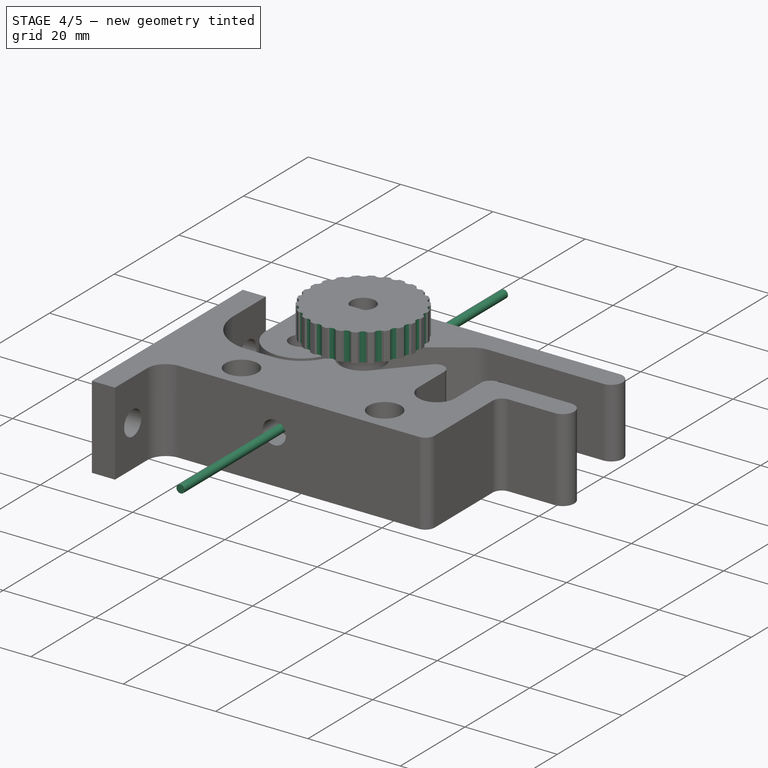
[diagram: stage 4 of 5 — iso view after this stage's code; geometry added in this stage tinted green]
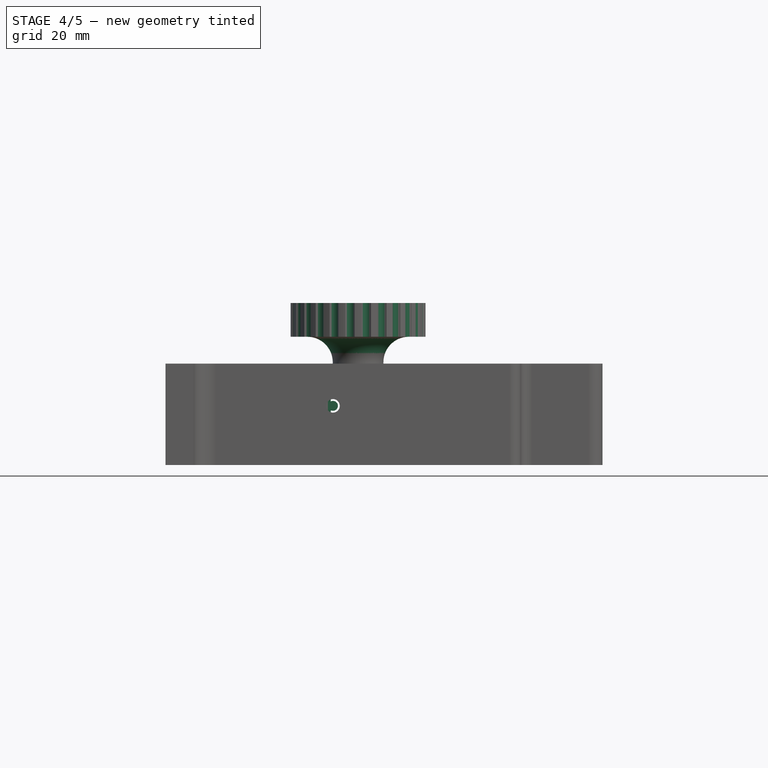
[diagram: stage 4 of 5 — front view after this stage's code; geometry added in this stage tinted green]
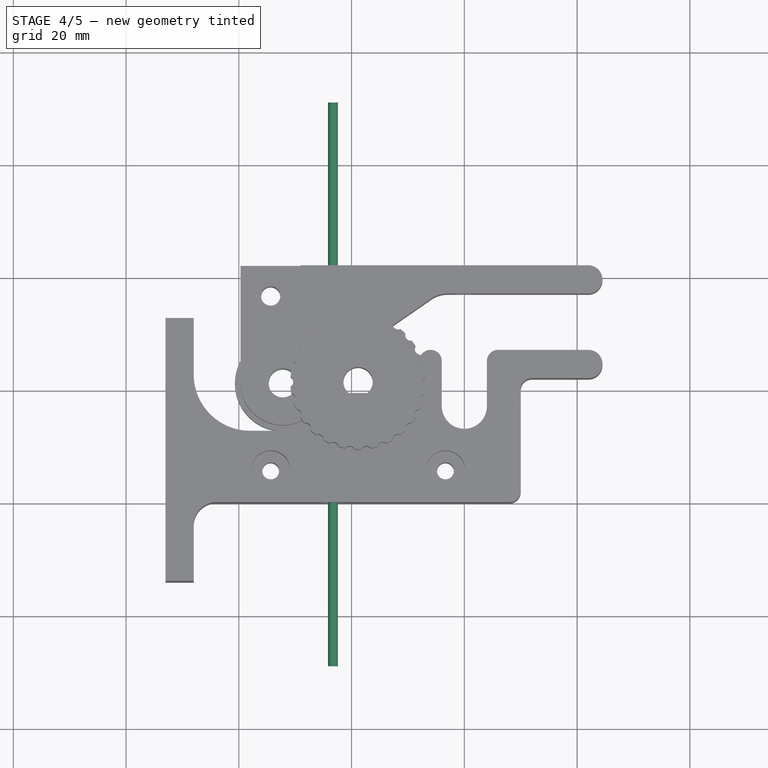
[diagram: stage 4 of 5 — top view after this stage's code; geometry added in this stage tinted green]
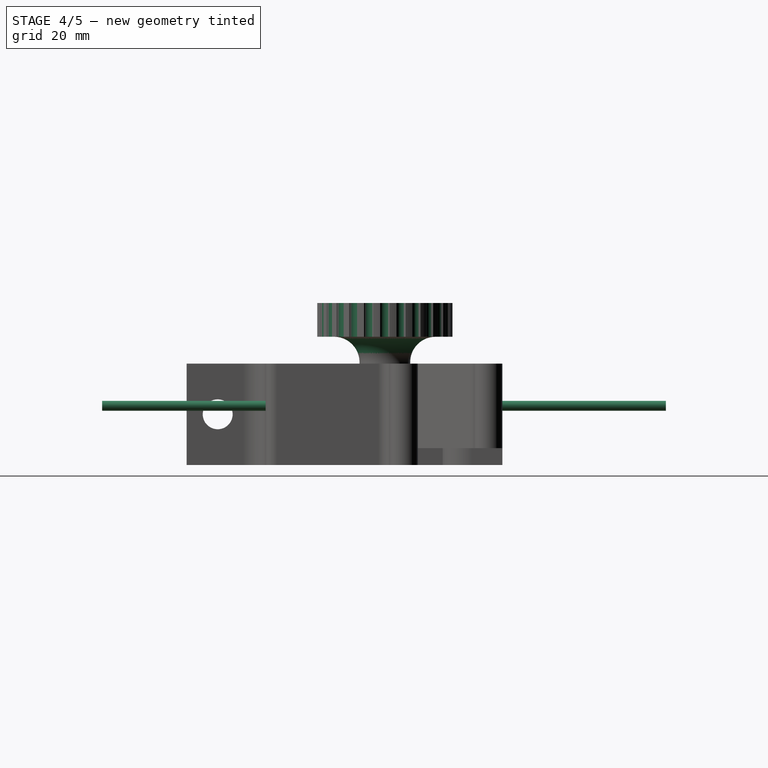
[diagram: stage 4 of 5 — right view after this stage's code; geometry added in this stage tinted green]
FEATURE [Sketcher::SketchObject] Sketch008
  Placement = pos=(0,21,0) rot=(1,0,0;1.5708rad)
  sketch-geometry (2):
    g0: Circle CenterX=16.7 CenterY=55.5 CenterZ=0 NormalX=0 NormalY=0 NormalZ=1 Radius=0.875
    g1: LineSegment [constr] StartX=16.7 StartY=45 StartZ=0 EndX=16.7 EndY=55.5 EndZ=0
  constraints (6):
    c: Radius(g0) = 0.875
    c: Coincident(g1,g0)
    c: Vertical(g1)
    c: DistanceY(g1) = 45
    c: Distance(g1) = 10.5
    c: DistanceX(g0) = 16.7
FEATURE [PartDesign::Pad] Pad006  label="filament"
  Length = 100
  Length2 = 100
  Midplane = true
  Placement = pos=(0,21,0) rot=(1,0,0;1.5708rad)
  Sketch = -> Sketch008
  Type = 0
FEATURE [Sketcher::SketchObject] Sketch009
  Placement = pos=(7.8,21.15,52.75) rot=(0,0,1;0rad)
  sketch-geometry (2):
    g0: Circle CenterX=0 CenterY=0 CenterZ=0 NormalX=0 NormalY=0 NormalZ=1 Radius=2.5
    g1: Circle CenterX=0 CenterY=0 CenterZ=0 NormalX=0 NormalY=0 NormalZ=1 Radius=8.5
  constraints (4):
    c: Coincident(g0,g-1)
    c: Coincident(g1,g-1)
    c: Radius(g0) = 2.5
    c: Radius(g1) = 8.5
FEATURE [PartDesign::Pad] Pad007  label="roller"
  Length = 5.4
  Length2 = 100
  Placement = pos=(7.8,21.15,52.75) rot=(0,0,1;0rad)
  Sketch = -> Sketch009
  Type = 0
FEATURE [Sketcher::SketchObject] Sketch021
  Placement = pos=(21.15,21.15,73.75) rot=(0,0,-1;1.5708rad)
  Support = -> Pad011 [Face5]
  sketch-geometry (1):
    g0: Circle CenterX=0 CenterY=12.5 CenterZ=0 NormalX=0 NormalY=0 NormalZ=1 Radius=1
  constraints (3):
    c: PointOnObject(g0,g-2)
    c: DistanceY(g0) = 12.5
    c: Radius(g0) = 1
FEATURE [PartDesign::Pocket] Pocket006
  Length = 6
  Placement = pos=(21.15,21.15,62.75) rot=(0,0,-1;1.5708rad)
  Sketch = -> Sketch021
  Type = 0
FEATURE [PartDesign::PolarPattern] PolarPattern
  Angle = 360
  Axis = -> Sketch021 [N_Axis]
  Occurrences = 26
  Originals = -> [Pocket006]
  Placement = pos=(21.15,21.15,62.75) rot=(0,0,-1;1.5708rad)
FEATURE [PartDesign::Fillet] Fillet  label="fingerwheel001"
  Base = -> PolarPattern [Edge5]
  Placement = pos=(21.15,21.15,62.75) rot=(0,0,-1;1.5708rad)
  Radius = 4.5
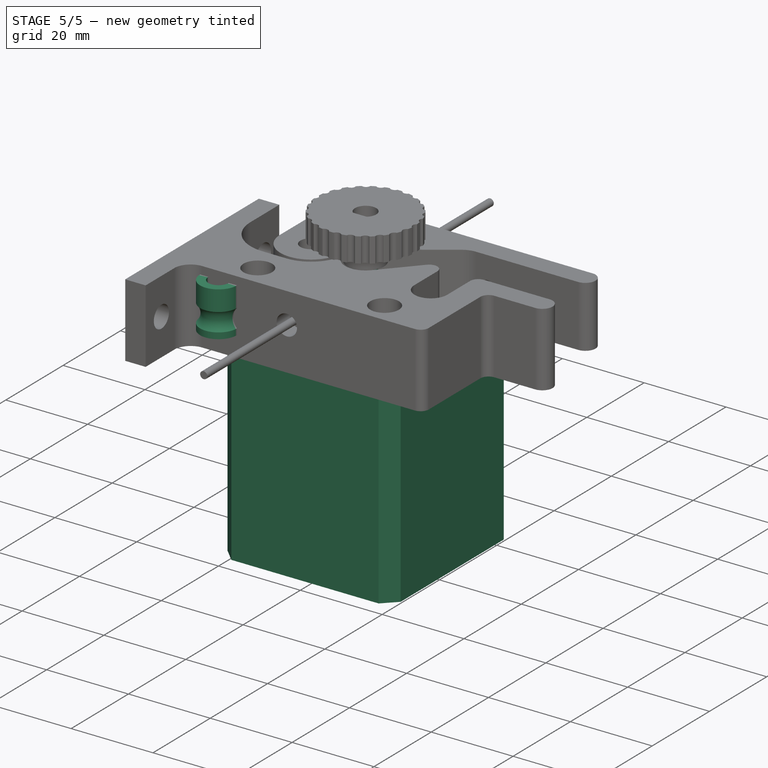
[diagram: stage 5 of 5 — iso view after this stage's code; geometry added in this stage tinted green]
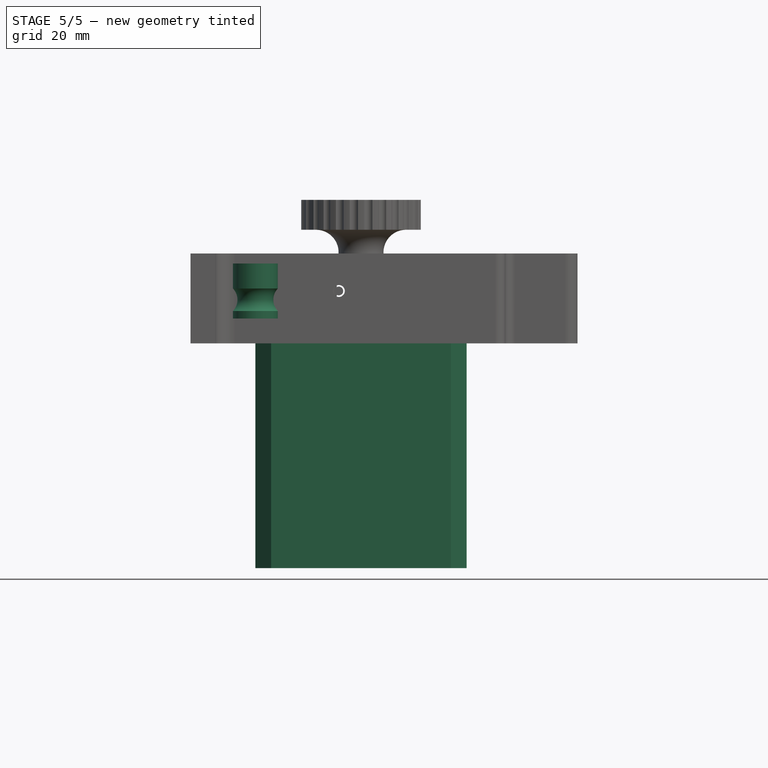
[diagram: stage 5 of 5 — front view after this stage's code; geometry added in this stage tinted green]
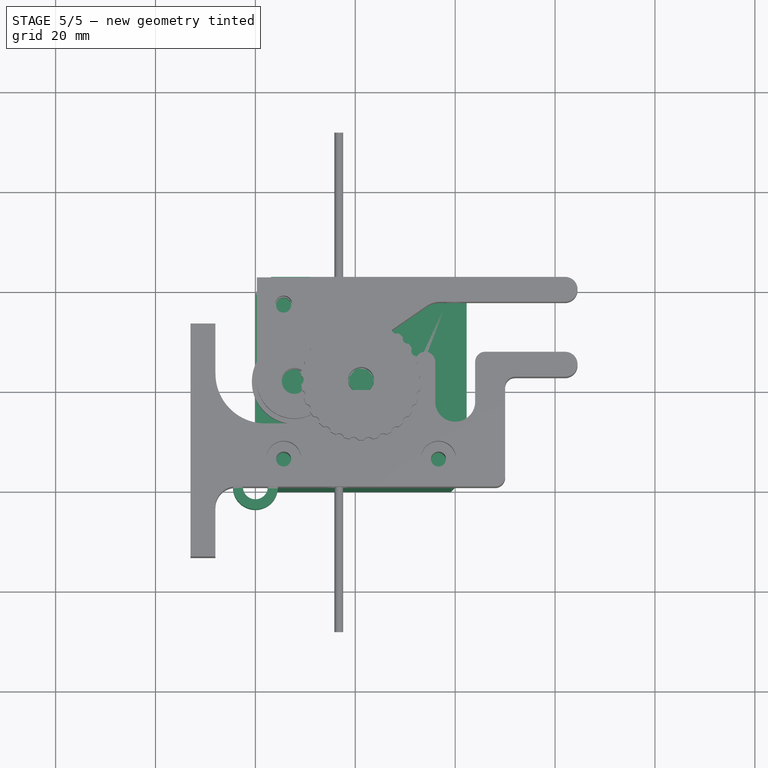
[diagram: stage 5 of 5 — top view after this stage's code; geometry added in this stage tinted green]
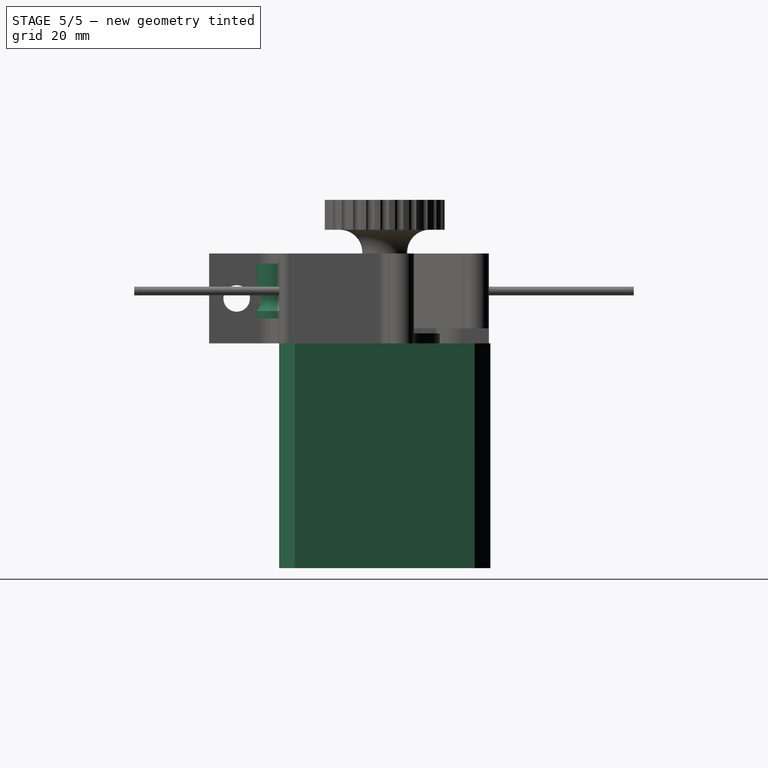
[diagram: stage 5 of 5 — right view after this stage's code; geometry added in this stage tinted green]
FEATURE [Sketcher::SketchObject] Sketch  label="Motor"
  sketch-geometry (19):
    g0: LineSegment StartX=3.15 StartY=0 StartZ=0 EndX=0 EndY=3.15 EndZ=0
    g1: LineSegment StartX=0 StartY=3.15 StartZ=0 EndX=0 EndY=39.15 EndZ=0
    g2: LineSegment StartX=0 StartY=39.15 StartZ=0 EndX=3.15 EndY=42.3 EndZ=0
    g3: LineSegment StartX=3.15 StartY=42.3 StartZ=0 EndX=39.15 EndY=42.3 EndZ=0
    g4: LineSegment StartX=39.15 StartY=42.3 StartZ=0 EndX=42.3 EndY=39.15 EndZ=0
    g5: LineSegment StartX=42.3 StartY=39.15 StartZ=0 EndX=42.3 EndY=3.15 EndZ=0
    g6: LineSegment StartX=42.3 StartY=3.15 StartZ=0 EndX=39.15 EndY=0 EndZ=0
    g7: LineSegment StartX=39.15 StartY=0 StartZ=0 EndX=3.15 EndY=0 EndZ=0
    g8: LineSegment [constr] StartX=1.575 StartY=1.575 StartZ=0 EndX=40.725 EndY=40.725 EndZ=0
    g9: LineSegment [constr] StartX=1.575 StartY=40.725 StartZ=0 EndX=40.725 EndY=1.575 EndZ=0
    g10: Circle [constr] CenterX=21.15 CenterY=21.15 CenterZ=0 NormalX=0 NormalY=0 NormalZ=1 Radius=11
    g11: Circle [constr] CenterX=21.15 CenterY=21.15 CenterZ=0 NormalX=0 NormalY=0 NormalZ=1 Radius=2.5
    g12: Circle [constr] CenterX=5.65 CenterY=36.65 CenterZ=0 NormalX=0 NormalY=0 NormalZ=1 Radius=1.5
    g13: Circle [constr] CenterX=36.65 CenterY=36.65 CenterZ=0 NormalX=0 NormalY=0 NormalZ=1 Radius=1.5
    g14: Circle [constr] CenterX=36.65 CenterY=5.65 CenterZ=0 NormalX=0 NormalY=0 NormalZ=1 Radius=1.5
    g15: Circle [constr] CenterX=5.65 CenterY=5.65 CenterZ=0 NormalX=0 NormalY=0 NormalZ=1 Radius=1.5
    g16: LineSegment [constr] StartX=5.65 StartY=36.65 StartZ=0 EndX=36.65 EndY=36.65 EndZ=0
    g17: LineSegment [constr] StartX=36.65 StartY=36.65 StartZ=0 EndX=36.65 EndY=5.65 EndZ=0
    g18: LineSegment [constr] StartX=36.65 StartY=5.65 StartZ=0 EndX=5.65 EndY=5.65 EndZ=0
  constraints (54):
    c: Coincident(g0,g1)
    c: Vertical(g1)
    c: Coincident(g1,g2)
    c: Coincident(g2,g3)
    c: Horizontal(g3)
    c: Coincident(g3,g4)
    c: Coincident(g4,g5)
    c: Vertical(g5)
    c: Coincident(g5,g6)
    c: Coincident(g6,g7)
    c: Coincident(g7,g0)
    c: Horizontal(g7)
    c: Parallel(g0,g4)
    c: Perpendicular(g6,g4)
    c: Angle(g2) = 0.785398
    c: Equal(g3,g1)
    c: Equal(g1,g5)
    c: Equal(g5,g7)
    c: Equal(g2,g4)
    c: Distance(g1,g4) = 42.3
    c: Distance(g3) = 36
    c: PointOnObject(g0,g-2)
    c: PointOnObject(g0,g-1)
    c: PointOnObject(g8,g0)
    c: PointOnObject(g8,g4)
    c: Angle(g8) = 0.785398
    c: Symmetric(g0,g0,g8)
    c: PointOnObject(g9,g2)
    c: PointOnObject(g9,g6)
    c: Perpendicular(g9,g8)
    c: Symmetric(g5,g6,g9)
    c: PointOnObject(g10,g9)
    c: PointOnObject(g10,g8)
    c: Radius(g10) = 11
    c: Coincident(g11,g10)
    c: Radius(g11) = 2.5
    c: PointOnObject(g12,g9)
    c: Radius(g12) = 1.5
    c: PointOnObject(g13,g8)
    c: PointOnObject(g14,g9)
    c: PointOnObject(g15,g8)
    c: Equal(g15,g14)
    c: Equal(g14,g13)
    c: Equal(g13,g12)
    c: Coincident(g16,g12)
    c: Coincident(g16,g13)
    c: Horizontal(g16)
    c: Coincident(g17,g13)
    c: Coincident(g17,g14)
    c: Vertical(g17)
    c: Coincident(g18,g14)
    c: Coincident(g18,g15)
    c: Horizontal(g18)
    c: Distance(g16) = 31
FEATURE [PartDesign::Pad] Pad
  Length = 40
  Length2 = 100
  Sketch = -> Sketch
  Type = 0
FEATURE [Sketcher::SketchObject] Sketch001  label="Motor001"
  Placement = pos=(0,0,40) rot=(0,0,1;0rad)
  Support = -> Pad [Face10]
  sketch-geometry (19):
    g0: LineSegment StartX=3.15 StartY=0 StartZ=0 EndX=0 EndY=3.15 EndZ=0
    g1: LineSegment StartX=0 StartY=3.15 StartZ=0 EndX=0 EndY=39.15 EndZ=0
    g2: LineSegment StartX=0 StartY=39.15 StartZ=0 EndX=3.15 EndY=42.3 EndZ=0
    g3: LineSegment StartX=3.15 StartY=42.3 StartZ=0 EndX=39.15 EndY=42.3 EndZ=0
    g4: LineSegment StartX=39.15 StartY=42.3 StartZ=0 EndX=42.3 EndY=39.15 EndZ=0
    g5: LineSegment StartX=42.3 StartY=39.15 StartZ=0 EndX=42.3 EndY=3.15 EndZ=0
    g6: LineSegment StartX=42.3 StartY=3.15 StartZ=0 EndX=39.15 EndY=0 EndZ=0
    g7: LineSegment StartX=39.15 StartY=0 StartZ=0 EndX=3.15 EndY=0 EndZ=0
    g8: LineSegment [constr] StartX=1.575 StartY=1.575 StartZ=0 EndX=40.725 EndY=40.725 EndZ=0
    g9: LineSegment [constr] StartX=1.575 StartY=40.725 StartZ=0 EndX=40.725 EndY=1.575 EndZ=0
    g10: Circle [constr] CenterX=21.15 CenterY=21.15 CenterZ=0 NormalX=0 NormalY=0 NormalZ=1 Radius=11
    g11: Circle [constr] CenterX=21.15 CenterY=21.15 CenterZ=0 NormalX=0 NormalY=0 NormalZ=1 Radius=2.5
    g12: Circle CenterX=5.65 CenterY=36.65 CenterZ=0 NormalX=0 NormalY=0 NormalZ=1 Radius=1.5
    g13: Circle CenterX=36.65 CenterY=36.65 CenterZ=0 NormalX=0 NormalY=0 NormalZ=1 Radius=1.5
    g14: Circle CenterX=36.65 CenterY=5.65 CenterZ=0 NormalX=0 NormalY=0 NormalZ=1 Radius=1.5
    g15: Circle CenterX=5.65 CenterY=5.65 CenterZ=0 NormalX=0 NormalY=0 NormalZ=1 Radius=1.5
    g16: LineSegment [constr] StartX=5.65 StartY=36.65 StartZ=0 EndX=36.65 EndY=36.65 EndZ=0
    g17: LineSegment [constr] StartX=36.65 StartY=36.65 StartZ=0 EndX=36.65 EndY=5.65 EndZ=0
    g18: LineSegment [constr] StartX=36.65 StartY=5.65 StartZ=0 EndX=5.65 EndY=5.65 EndZ=0
  constraints (54):
    c: Coincident(g0,g1)
    c: Vertical(g1)
    c: Coincident(g1,g2)
    c: Coincident(g2,g3)
    c: Horizontal(g3)
    c: Coincident(g3,g4)
    c: Coincident(g4,g5)
    c: Vertical(g5)
    c: Coincident(g5,g6)
    c: Coincident(g6,g7)
    c: Coincident(g7,g0)
    c: Horizontal(g7)
    c: Parallel(g0,g4)
    c: Perpendicular(g6,g4)
    c: Angle(g2) = 0.785398
    c: Equal(g3,g1)
    c: Equal(g1,g5)
    c: Equal(g5,g7)
    c: Equal(g2,g4)
    c: Distance(g1,g4) = 42.3
    c: Distance(g3) = 36
    c: PointOnObject(g0,g-2)
    c: PointOnObject(g0,g-1)
    c: PointOnObject(g8,g0)
    c: PointOnObject(g8,g4)
    c: Angle(g8) = 0.785398
    c: Symmetric(g0,g0,g8)
    c: PointOnObject(g9,g2)
    c: PointOnObject(g9,g6)
    c: Perpendicular(g9,g8)
    c: Symmetric(g5,g6,g9)
    c: PointOnObject(g10,g9)
    c: PointOnObject(g10,g8)
    c: Radius(g10) = 11
    c: Coincident(g11,g10)
    c: Radius(g11) = 2.5
    c: PointOnObject(g12,g9)
    c: Radius(g12) = 1.5
    c: PointOnObject(g13,g8)
    c: PointOnObject(g14,g9)
    c: PointOnObject(g15,g8)
    c: Equal(g15,g14)
    c: Equal(g14,g13)
    c: Equal(g13,g12)
    c: Coincident(g16,g12)
    c: Coincident(g16,g13)
    c: Horizontal(g16)
    c: Coincident(g17,g13)
    c: Coincident(g17,g14)
    c: Vertical(g17)
    c: Coincident(g18,g14)
    c: Coincident(g18,g15)
    c: Horizontal(g18)
    c: Distance(g16) = 31
FEATURE [PartDesign::Pad] Pad001
  Length = 5
  Length2 = 100
  Sketch = -> Sketch001
  Type = 0
FEATURE [Sketcher::SketchObject] Sketch002  label="Motor002"
  Placement = pos=(0,0,45) rot=(0,0,1;0rad)
  Support = -> Pad001 [Face1]
  sketch-geometry (19):
    g0: LineSegment [constr] StartX=3.15 StartY=0 StartZ=0 EndX=0 EndY=3.15 EndZ=0
    g1: LineSegment [constr] StartX=0 StartY=3.15 StartZ=0 EndX=0 EndY=39.15 EndZ=0
    g2: LineSegment [constr] StartX=0 StartY=39.15 StartZ=0 EndX=3.15 EndY=42.3 EndZ=0
    g3: LineSegment [constr] StartX=3.15 StartY=42.3 StartZ=0 EndX=39.15 EndY=42.3 EndZ=0
    g4: LineSegment [constr] StartX=39.15 StartY=42.3 StartZ=0 EndX=42.3 EndY=39.15 EndZ=0
    g5: LineSegment [constr] StartX=42.3 StartY=39.15 StartZ=0 EndX=42.3 EndY=3.15 EndZ=0
    g6: LineSegment [constr] StartX=42.3 StartY=3.15 StartZ=0 EndX=39.15 EndY=0 EndZ=0
    g7: LineSegment [constr] StartX=39.15 StartY=0 StartZ=0 EndX=3.15 EndY=0 EndZ=0
    g8: LineSegment [constr] StartX=1.575 StartY=1.575 StartZ=0 EndX=40.725 EndY=40.725 EndZ=0
    g9: LineSegment [constr] StartX=1.575 StartY=40.725 StartZ=0 EndX=40.725 EndY=1.575 EndZ=0
    g10: Circle CenterX=21.15 CenterY=21.15 CenterZ=0 NormalX=0 NormalY=0 NormalZ=1 Radius=11
    g11: Circle [constr] CenterX=21.15 CenterY=21.15 CenterZ=0 NormalX=0 NormalY=0 NormalZ=1 Radius=2.5
    g12: Circle [constr] CenterX=5.65 CenterY=36.65 CenterZ=0 NormalX=0 NormalY=0 NormalZ=1 Radius=1.5
    g13: Circle [constr] CenterX=36.65 CenterY=36.65 CenterZ=0 NormalX=0 NormalY=0 NormalZ=1 Radius=1.5
    g14: Circle [constr] CenterX=36.65 CenterY=5.65 CenterZ=0 NormalX=0 NormalY=0 NormalZ=1 Radius=1.5
    g15: Circle [constr] CenterX=5.65 CenterY=5.65 CenterZ=0 NormalX=0 NormalY=0 NormalZ=1 Radius=1.5
    g16: LineSegment [constr] StartX=5.65 StartY=36.65 StartZ=0 EndX=36.65 EndY=36.65 EndZ=0
    g17: LineSegment [constr] StartX=36.65 StartY=36.65 StartZ=0 EndX=36.65 EndY=5.65 EndZ=0
    g18: LineSegment [constr] StartX=36.65 StartY=5.65 StartZ=0 EndX=5.65 EndY=5.65 EndZ=0
  constraints (54):
    c: Coincident(g0,g1)
    c: Vertical(g1)
    c: Coincident(g1,g2)
    c: Coincident(g2,g3)
    c: Horizontal(g3)
    c: Coincident(g3,g4)
    c: Coincident(g4,g5)
    c: Vertical(g5)
    c: Coincident(g5,g6)
    c: Coincident(g6,g7)
    c: Coincident(g7,g0)
    c: Horizontal(g7)
    c: Parallel(g0,g4)
    c: Perpendicular(g6,g4)
    c: Angle(g2) = 0.785398
    c: Equal(g3,g1)
    c: Equal(g1,g5)
    c: Equal(g5,g7)
    c: Equal(g2,g4)
    c: Distance(g1,g4) = 42.3
    c: Distance(g3) = 36
    c: PointOnObject(g0,g-2)
    c: PointOnObject(g0,g-1)
    c: PointOnObject(g8,g0)
    c: PointOnObject(g8,g4)
    c: Angle(g8) = 0.785398
    c: Symmetric(g0,g0,g8)
    c: PointOnObject(g9,g2)
    c: PointOnObject(g9,g6)
    c: Perpendicular(g9,g8)
    c: Symmetric(g5,g6,g9)
    c: PointOnObject(g10,g9)
    c: PointOnObject(g10,g8)
    c: Radius(g10) = 11
    c: Coincident(g11,g10)
    c: Radius(g11) = 2.5
    c: PointOnObject(g12,g9)
    c: Radius(g12) = 1.5
    c: PointOnObject(g13,g8)
    c: PointOnObject(g14,g9)
    c: PointOnObject(g15,g8)
    c: Equal(g15,g14)
    c: Equal(g14,g13)
    c: Equal(g13,g12)
    c: Coincident(g16,g12)
    c: Coincident(g16,g13)
    c: Horizontal(g16)
    c: Coincident(g17,g13)
    c: Coincident(g17,g14)
    c: Vertical(g17)
    c: Coincident(g18,g14)
    c: Coincident(g18,g15)
    c: Horizontal(g18)
    c: Distance(g16) = 31
FEATURE [PartDesign::Pad] Pad002
  Length = 2
  Length2 = 100
  Sketch = -> Sketch002
  Type = 0
FEATURE [Sketcher::SketchObject] Sketch003  label="Motor003"
  Placement = pos=(0,0,47) rot=(0,0,1;0rad)
  Support = -> Pad002 [Face20]
  sketch-geometry (19):
    g0: LineSegment [constr] StartX=3.15 StartY=0 StartZ=0 EndX=0 EndY=3.15 EndZ=0
    g1: LineSegment [constr] StartX=0 StartY=3.15 StartZ=0 EndX=0 EndY=39.15 EndZ=0
    g2: LineSegment [constr] StartX=0 StartY=39.15 StartZ=0 EndX=3.15 EndY=42.3 EndZ=0
    g3: LineSegment [constr] StartX=3.15 StartY=42.3 StartZ=0 EndX=39.15 EndY=42.3 EndZ=0
    g4: LineSegment [constr] StartX=39.15 StartY=42.3 StartZ=0 EndX=42.3 EndY=39.15 EndZ=0
    g5: LineSegment [constr] StartX=42.3 StartY=39.15 StartZ=0 EndX=42.3 EndY=3.15 EndZ=0
    g6: LineSegment [constr] StartX=42.3 StartY=3.15 StartZ=0 EndX=39.15 EndY=0 EndZ=0
    g7: LineSegment [constr] StartX=39.15 StartY=0 StartZ=0 EndX=3.15 EndY=0 EndZ=0
    g8: LineSegment [constr] StartX=1.575 StartY=1.575 StartZ=0 EndX=40.725 EndY=40.725 EndZ=0
    g9: LineSegment [constr] StartX=1.575 StartY=40.725 StartZ=0 EndX=40.725 EndY=1.575 EndZ=0
    g10: Circle [constr] CenterX=21.15 CenterY=21.15 CenterZ=0 NormalX=0 NormalY=0 NormalZ=1 Radius=11
    g11: Circle CenterX=21.15 CenterY=21.15 CenterZ=0 NormalX=0 NormalY=0 NormalZ=1 Radius=2.5
    g12: Circle [constr] CenterX=5.65 CenterY=36.65 CenterZ=0 NormalX=0 NormalY=0 NormalZ=1 Radius=1.5
    g13: Circle [constr] CenterX=36.65 CenterY=36.65 CenterZ=0 NormalX=0 NormalY=0 NormalZ=1 Radius=1.5
    g14: Circle [constr] CenterX=36.65 CenterY=5.65 CenterZ=0 NormalX=0 NormalY=0 NormalZ=1 Radius=1.5
    g15: Circle [constr] CenterX=5.65 CenterY=5.65 CenterZ=0 NormalX=0 NormalY=0 NormalZ=1 Radius=1.5
    g16: LineSegment [constr] StartX=5.65 StartY=36.65 StartZ=0 EndX=36.65 EndY=36.65 EndZ=0
    g17: LineSegment [constr] StartX=36.65 StartY=36.65 StartZ=0 EndX=36.65 EndY=5.65 EndZ=0
    g18: LineSegment [constr] StartX=36.65 StartY=5.65 StartZ=0 EndX=5.65 EndY=5.65 EndZ=0
  constraints (54):
    c: Coincident(g0,g1)
    c: Vertical(g1)
    c: Coincident(g1,g2)
    c: Coincident(g2,g3)
    c: Horizontal(g3)
    c: Coincident(g3,g4)
    c: Coincident(g4,g5)
    c: Vertical(g5)
    c: Coincident(g5,g6)
    c: Coincident(g6,g7)
    c: Coincident(g7,g0)
    c: Horizontal(g7)
    c: Parallel(g0,g4)
    c: Perpendicular(g6,g4)
    c: Angle(g2) = 0.785398
    c: Equal(g3,g1)
    c: Equal(g1,g5)
    c: Equal(g5,g7)
    c: Equal(g2,g4)
    c: Distance(g1,g4) = 42.3
    c: Distance(g3) = 36
    c: PointOnObject(g0,g-2)
    c: PointOnObject(g0,g-1)
    c: PointOnObject(g8,g0)
    c: PointOnObject(g8,g4)
    c: Angle(g8) = 0.785398
    c: Symmetric(g0,g0,g8)
    c: PointOnObject(g9,g2)
    c: PointOnObject(g9,g6)
    c: Perpendicular(g9,g8)
    c: Symmetric(g5,g6,g9)
    c: PointOnObject(g10,g9)
    c: PointOnObject(g10,g8)
    c: Radius(g10) = 11
    c: Coincident(g11,g10)
    c: Radius(g11) = 2.5
    c: PointOnObject(g12,g9)
    c: Radius(g12) = 1.5
    c: PointOnObject(g13,g8)
    c: PointOnObject(g14,g9)
    c: PointOnObject(g15,g8)
    c: Equal(g15,g14)
    c: Equal(g14,g13)
    c: Equal(g13,g12)
    c: Coincident(g16,g12)
    c: Coincident(g16,g13)
    c: Horizontal(g16)
    c: Coincident(g17,g13)
    c: Coincident(g17,g14)
    c: Vertical(g17)
    c: Coincident(g18,g14)
    c: Coincident(g18,g15)
    c: Horizontal(g18)
    c: Distance(g16) = 31
FEATURE [PartDesign::Pad] Pad003  label="NEMA_17"
  Length = 22
  Length2 = 100
  Sketch = -> Sketch003
  Type = 0
FEATURE [Sketcher::SketchObject] Sketch004  label="base"
  Placement = pos=(0,0,45) rot=(0,0,1;0rad)
  sketch-geometry (46):
    g0: LineSegment [constr] StartX=5.65 StartY=5.65 StartZ=0 EndX=36.65 EndY=36.65 EndZ=0
    g1: LineSegment [constr] StartX=5.65 StartY=36.65 StartZ=0 EndX=36.65 EndY=5.65 EndZ=0
    g2: Circle [constr] CenterX=21.15 CenterY=21.15 CenterZ=0 NormalX=0 NormalY=0 NormalZ=1 Radius=11
    g3: Circle [constr] CenterX=21.15 CenterY=21.15 CenterZ=0 NormalX=0 NormalY=0 NormalZ=1 Radius=4.5
    g4: Circle CenterX=5.65 CenterY=36.65 CenterZ=0 NormalX=0 NormalY=0 NormalZ=1 Radius=1.5
    g5: Circle [constr] CenterX=36.65 CenterY=36.65 CenterZ=0 NormalX=0 NormalY=0 NormalZ=1 Radius=1.5
    g6: Circle CenterX=36.65 CenterY=5.65 CenterZ=0 NormalX=0 NormalY=0 NormalZ=1 Radius=1.5
    g7: Circle CenterX=5.65 CenterY=5.65 CenterZ=0 NormalX=0 NormalY=0 NormalZ=1 Radius=1.5
    g8: LineSegment [constr] StartX=5.65 StartY=36.65 StartZ=0 EndX=36.65 EndY=36.65 EndZ=0
    g9: LineSegment [constr] StartX=36.65 StartY=36.65 StartZ=0 EndX=36.65 EndY=5.65 EndZ=0
    g10: LineSegment [constr] StartX=36.65 StartY=5.65 StartZ=0 EndX=5.65 EndY=5.65 EndZ=0
    g11: Circle [constr] CenterX=7.8 CenterY=21.15 CenterZ=0 NormalX=0 NormalY=0 NormalZ=1 Radius=8
    g12: Circle CenterX=7.8 CenterY=21.15 CenterZ=0 NormalX=0 NormalY=0 NormalZ=1 Radius=2.5
    g13: LineSegment [constr] StartX=21.15 StartY=21.15 StartZ=0 EndX=15.8 EndY=21.15 EndZ=0
    g14: ArcOfCircle CenterX=7.8 CenterY=21.15 CenterZ=0 NormalX=0 NormalY=0 NormalZ=1 Radius=7.5 StartAngle=3.14159 EndAngle=6.09304
    g15: ArcOfCircle CenterX=24.332 CenterY=17.968 CenterZ=0 NormalX=0 NormalY=0 NormalZ=1 Radius=9.33542 StartAngle=2.17584 EndAngle=2.95144
    g16: LineSegment StartX=0.3 StartY=21.15 StartZ=0 EndX=0.3 EndY=36.65 EndZ=0
    g17: LineSegment StartX=34.156 StartY=36.1124 StartZ=0 EndX=19.022 EndY=25.6462 EndZ=0
    g18: ArcOfCircle CenterX=5.65 CenterY=36.65 CenterZ=0 NormalX=0 NormalY=0 NormalZ=1 Radius=5.35 StartAngle=1.57079 EndAngle=3.14159
    g19: ArcOfCircle CenterX=7.8 CenterY=21.15 CenterZ=0 NormalX=0 NormalY=0 NormalZ=1 Radius=8.5 StartAngle=4.71239 EndAngle=5.9112
    g20: LineSegment StartX=15.7187 StartY=18.0606 StartZ=0 EndX=17.2187 EndY=18.0606 EndZ=0
    g21: ArcOfCircle CenterX=21.15 CenterY=21.15 CenterZ=0 NormalX=0 NormalY=0 NormalZ=1 Radius=5 StartAngle=3.80765 EndAngle=5.55248
    g22: LineSegment StartX=24.8735 StartY=17.813 StartZ=0 EndX=32.5106 EndY=26.3348 EndZ=0
    g23: LineSegment StartX=36 StartY=25 StartZ=0 EndX=36 EndY=17 EndZ=0
    g24: ArcOfCircle CenterX=40 CenterY=17 CenterZ=0 NormalX=0 NormalY=0 NormalZ=1 Radius=4 StartAngle=3.14159 EndAngle=6.28319
    g25: LineSegment StartX=44 StartY=17 StartZ=0 EndX=44 EndY=25 EndZ=0
    g26: ArcOfCircle CenterX=34 CenterY=25 CenterZ=0 NormalX=0 NormalY=0 NormalZ=1 Radius=2 StartAngle=0 EndAngle=2.41089
    g27: ArcOfCircle CenterX=46 CenterY=25 CenterZ=0 NormalX=0 NormalY=0 NormalZ=1 Radius=2 StartAngle=1.5708 EndAngle=3.14159
    g28: LineSegment [constr] StartX=36 StartY=25 StartZ=0 EndX=44 EndY=25 EndZ=0
    g29: LineSegment [constr] StartX=40 StartY=13 StartZ=0 EndX=40 EndY=37 EndZ=0
    g30: LineSegment StartX=7.8 StartY=12.65 StartZ=0 EndX=2 EndY=12.65 EndZ=0
    g31: LineSegment StartX=0 StartY=10.65 StartZ=0 EndX=0 EndY=2 EndZ=0
    g32: LineSegment StartX=2 StartY=0 StartZ=0 EndX=48 EndY=0 EndZ=0
    g33: ArcOfCircle CenterX=2 CenterY=10.65 CenterZ=0 NormalX=0 NormalY=0 NormalZ=1 Radius=2 StartAngle=1.5708 EndAngle=3.14159
    g34: ArcOfCircle CenterX=2 CenterY=2 CenterZ=0 NormalX=0 NormalY=0 NormalZ=1 Radius=2 StartAngle=3.14159 EndAngle=4.71239
    g35: ArcOfCircle CenterX=48 CenterY=2 CenterZ=0 NormalX=0 NormalY=0 NormalZ=1 Radius=2 StartAngle=4.71239 EndAngle=6.28319
    g36: LineSegment StartX=37 StartY=37 StartZ=0 EndX=62 EndY=37 EndZ=0
    g37: ArcOfCircle CenterX=37 CenterY=32 CenterZ=0 NormalX=0 NormalY=0 NormalZ=1 Radius=5 StartAngle=1.5708 EndAngle=2.17584
    g38: LineSegment StartX=5.65002 StartY=42 StartZ=0 EndX=62 EndY=42 EndZ=0
    g39: ArcOfCircle CenterX=62 CenterY=39.5 CenterZ=0 NormalX=0 NormalY=0 NormalZ=1 Radius=2.5 StartAngle=4.71239 EndAngle=7.85398
    g40: LineSegment StartX=46 StartY=27 StartZ=0 EndX=62 EndY=27 EndZ=0
    g41: LineSegment [constr] StartX=62 StartY=39.5 StartZ=0 EndX=62 EndY=24.5 EndZ=0
    g42: ArcOfCircle CenterX=62 CenterY=24.5 CenterZ=0 NormalX=0 NormalY=0 NormalZ=1 Radius=2.5 StartAngle=4.71239 EndAngle=7.85398
    g43: LineSegment StartX=62 StartY=22 StartZ=0 EndX=52 EndY=22 EndZ=0
    g44: LineSegment StartX=50 StartY=20 StartZ=0 EndX=50 EndY=2 EndZ=0
    g45: ArcOfCircle CenterX=52 CenterY=20 CenterZ=0 NormalX=0 NormalY=0 NormalZ=1 Radius=2 StartAngle=1.5708 EndAngle=3.14159
  constraints (127):
    c: Angle(g0) = 0.785398
    c: Perpendicular(g1,g0)
    c: PointOnObject(g2,g1)
    c: PointOnObject(g2,g0)
    c: Radius(g2) = 11
    c: Coincident(g3,g2)
    c: Radius(g3) = 4.5
    c: Radius(g4) = 1.5
    c: Equal(g7,g6)
    c: Equal(g6,g5)
    c: Equal(g5,g4)
    c: Coincident(g8,g4)
    c: Coincident(g8,g5)
    c: Horizontal(g8)
    c: Coincident(g9,g5)
    c: Coincident(g9,g6)
    c: Vertical(g9)
    c: Coincident(g10,g6)
    c: Coincident(g10,g7)
    c: Horizontal(g10)
    c: Distance(g8) = 31
    c: Radius(g11) = 8
    c: Coincident(g12,g11)
    c: Radius(g12) = 2.5
    c: Coincident(g13,g2)
    c: Horizontal(g13)
    c: Distance(g13) = 5.35
    c: Coincident(g14,g11)
    c: Perpendicular(g11,g13)
    c: Radius(g14) = 7.5
    c: PointOnObject(g13,g11)
    c: Tangent(g16,g18) = 1.5708
    c: Coincident(g18,g4)
    c: Tangent(g16,g14)
    c: Vertical(g16)
    c: Coincident(g16,g14)
    c: PointOnObject(g15,g1)
    c: PointOnObject(g15,g3)
    c: Coincident(g14,g15)
    c: Coincident(g15,g17)
    c: DistanceX(g2) = 21.15
    c: DistanceY(g2) = 21.15
    c: Coincident(g1,g6)
    c: Coincident(g0,g7)
    c: Coincident(g5,g0)
    c: Coincident(g1,g4)
    c: Tangent(g17,g15)
    c: Coincident(g19,g11)
    c: Radius(g19) = 8.5
    c: Coincident(g20,g19)
    c: Horizontal(g20)
    c: Coincident(g21,g2)
    c: Coincident(g21,g20)
    c: Radius(g21) = 5
    c: Distance(g20) = 1.5
    c: Coincident(g22,g21)
    c: Tangent(g22,g21)
    c: Vertical(g23)
    c: Coincident(g24,g23)
    c: Tangent(g24,g23)
    c: Coincident(g25,g24)
    c: Vertical(g25)
    c: Tangent(g24,g25)
    c: Radius(g24) = 4
    c: Tangent(g22,g26) = 1.5708
    c: Tangent(g23,g26) = 1.5708
    c: Coincident(g27,g25)
    c: Tangent(g27,g25)
    c: Equal(g26,g27)
    c: Radius(g27) = 2
    c: Coincident(g28,g23)
    c: Coincident(g28,g25)
    c: Horizontal(g28)
    c: PointOnObject(g29,g24)
    c: Vertical(g29)
    c: Perpendicular(g24,g29)
    c: Distance(g29) = 24
    c: Tangent(g19,g30) = 1.5708
    c: Vertical(g31)
    c: Horizontal(g32)
    c: Horizontal(g30)
    c: Tangent(g30,g33) = -1.5708
    c: Tangent(g31,g33) = -1.5708
    c: Tangent(g31,g34) = -1.5708
    c: Tangent(g32,g34) = -1.5708
    c: Tangent(g32,g35) = -1.5708
    c: Equal(g27,g35)
    c: Equal(g35,g34)
    c: Equal(g34,g33)
    c: PointOnObject(g31,g-2)
    c: PointOnObject(g32,g-1)
    c: Horizontal(g36)
    c: PointOnObject(g29,g36)
    c: DistanceY(g29,g25) = 12
    c: Tangent(g17,g37) = -1.5708
    c: Tangent(g36,g37) = 1.5708
    c: Radius(g37) = 5
    c: Coincident(g38,g18)
    c: Horizontal(g38)
    c: Coincident(g39,g38)
    c: Coincident(g39,g36)
    c: Tangent(g39,g38)
    c: Tangent(g36,g39)
    c: Coincident(g40,g27)
    c: Horizontal(g40)
    c: Coincident(g41,g39)
    c: Vertical(g41)
    c: Coincident(g42,g41)
    c: Coincident(g42,g40)
    c: Tangent(g42,g40)
    c: Equal(g39,g42)
    c: Tangent(g42,g43) = 1.5708
    c: Coincident(g44,g35)
    c: Tangent(g43,g45) = -1.5708
    c: Tangent(g44,g45) = -1.5708
    c: Equal(g45,g27)
    c: Vertical(g44)
    c: Horizontal(g43)
    c: DistanceX(g44,g24) = -6
    c: Distance(g43) = 10
    c: Radius(g39) = 2.5
    c: Tangent(g40,g27)
    c: Tangent(g14,g15)
    c: DistanceX(g29) = 40
    c: Tangent(g35,g44)
    c: DistanceX(g36,g29) = 3
    c: Tangent(g18,g38)
FEATURE [Sketcher::SketchObject] Sketch005
  Placement = pos=(0,0,0) rot=(0.57735,0.57735,0.57735;2.0944rad)
  sketch-geometry (8):
    g0: LineSegment [constr] StartX=0 StartY=50 StartZ=0 EndX=2.5 EndY=50 EndZ=0
    g1: LineSegment StartX=2.5 StartY=50 StartZ=0 EndX=2.5 EndY=61 EndZ=0
    g2: LineSegment StartX=2.5 StartY=61 StartZ=0 EndX=4.5 EndY=61 EndZ=0
    g3: LineSegment StartX=4.5 StartY=50 StartZ=0 EndX=2.5 EndY=50 EndZ=0
    g4: ArcOfCircle CenterX=6.8625 CenterY=53.75 CenterZ=0 NormalX=0 NormalY=0 NormalZ=1 Radius=3.2625 StartAngle=2.38058 EndAngle=3.90261
    g5: LineSegment StartX=4.5 StartY=61 StartZ=0 EndX=4.5 EndY=56 EndZ=0
    g6: LineSegment StartX=4.5 StartY=51.5 StartZ=0 EndX=4.5 EndY=50 EndZ=0
    g7: LineSegment [constr] StartX=0 StartY=53.75 StartZ=0 EndX=3.6 EndY=53.75 EndZ=0
  constraints (26):
    c: PointOnObject(g0,g-2)
    c: Horizontal(g0)
    c: Coincident(g0,g1)
    c: Vertical(g1)
    c: Coincident(g1,g2)
    c: Horizontal(g2)
    c: Coincident(g3,g0)
    c: Horizontal(g3)
    c: Coincident(g5,g2)
    c: Coincident(g5,g4)
    c: Vertical(g5)
    c: Coincident(g6,g4)
    c: Coincident(g6,g3)
    c: Vertical(g6)
    c: Distance(g0) = 2.5
    c: DistanceX(g3) = 4.5
    c: Equal(g3,g2)
    c: PointOnObject(g7,g-2)
    c: PointOnObject(g7,g4)
    c: Horizontal(g7)
    c: Distance(g7) = 3.6
    c: Distance(g1) = 11
    c: Distance(g5) = 5
    c: Distance(g6) = 1.5
    c: DistanceY(g3) = 50
    c: Perpendicular(g4,g7)
FEATURE [PartDesign::Revolution] Revolution  label="MK8"
  Angle = 360
  Axis = (0,0,1)
  Base = (0,0,0)
  Placement = pos=(0,0,0) rot=(0.57735,0.57735,0.57735;2.0944rad)
  ReferenceAxis = -> Sketch005 [V_Axis]
  Sketch = -> Sketch005
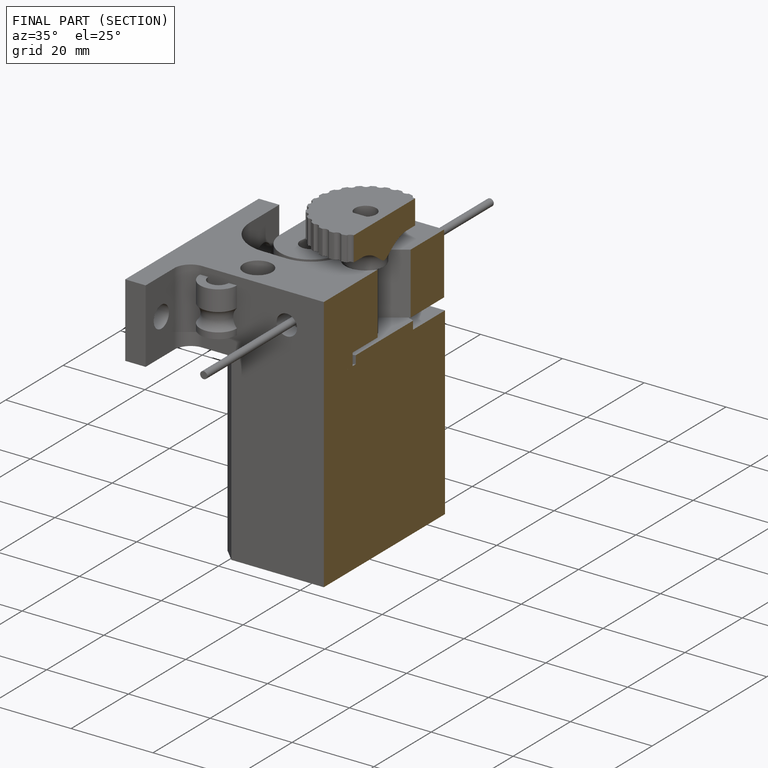
[diagram: finished part — half-section view (interior)]
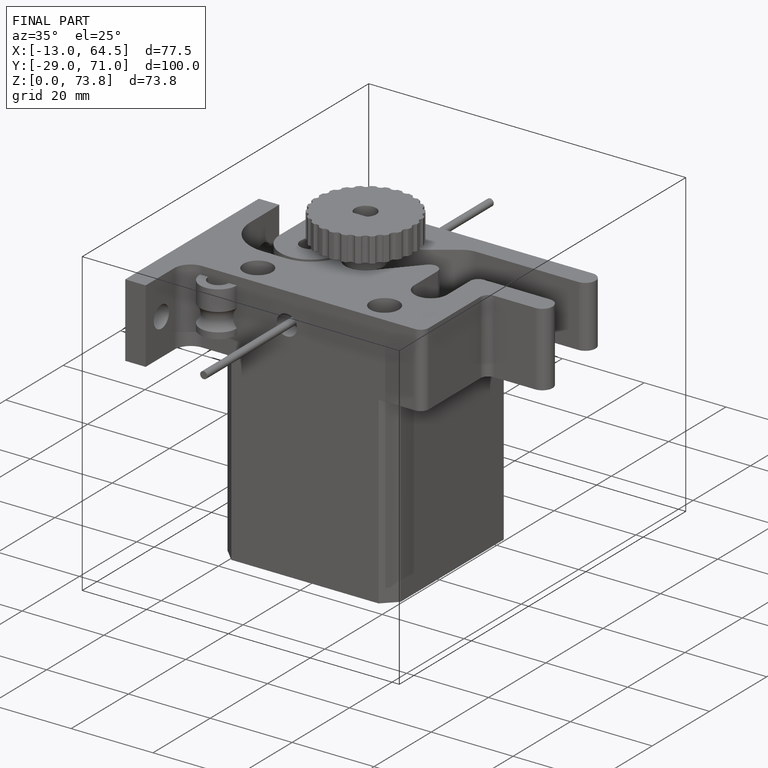
[diagram: finished part — iso view with bounding-box wireframe]
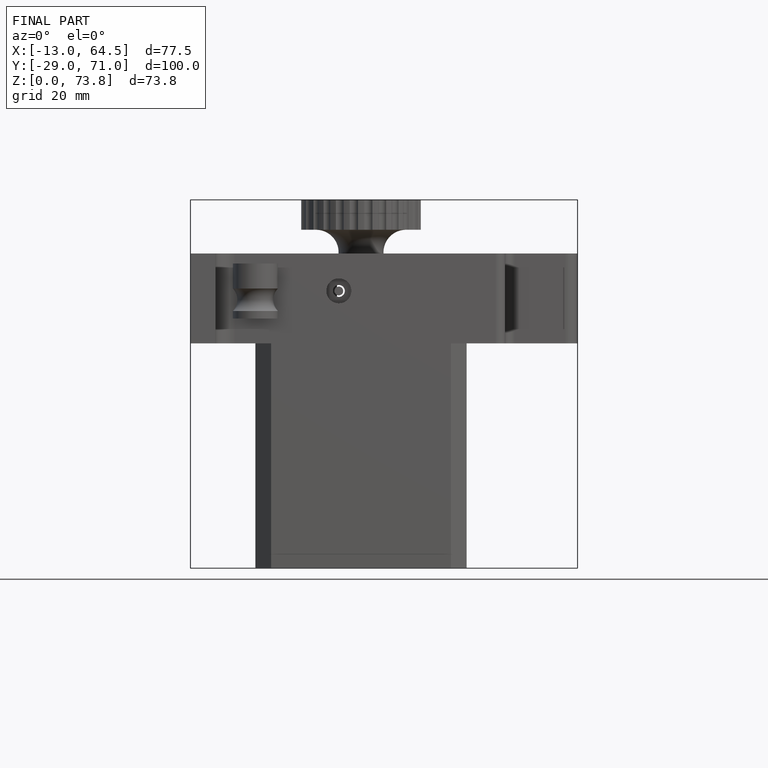
[diagram: finished part — front view with bounding-box wireframe]
